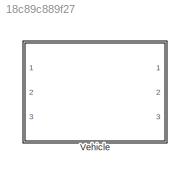
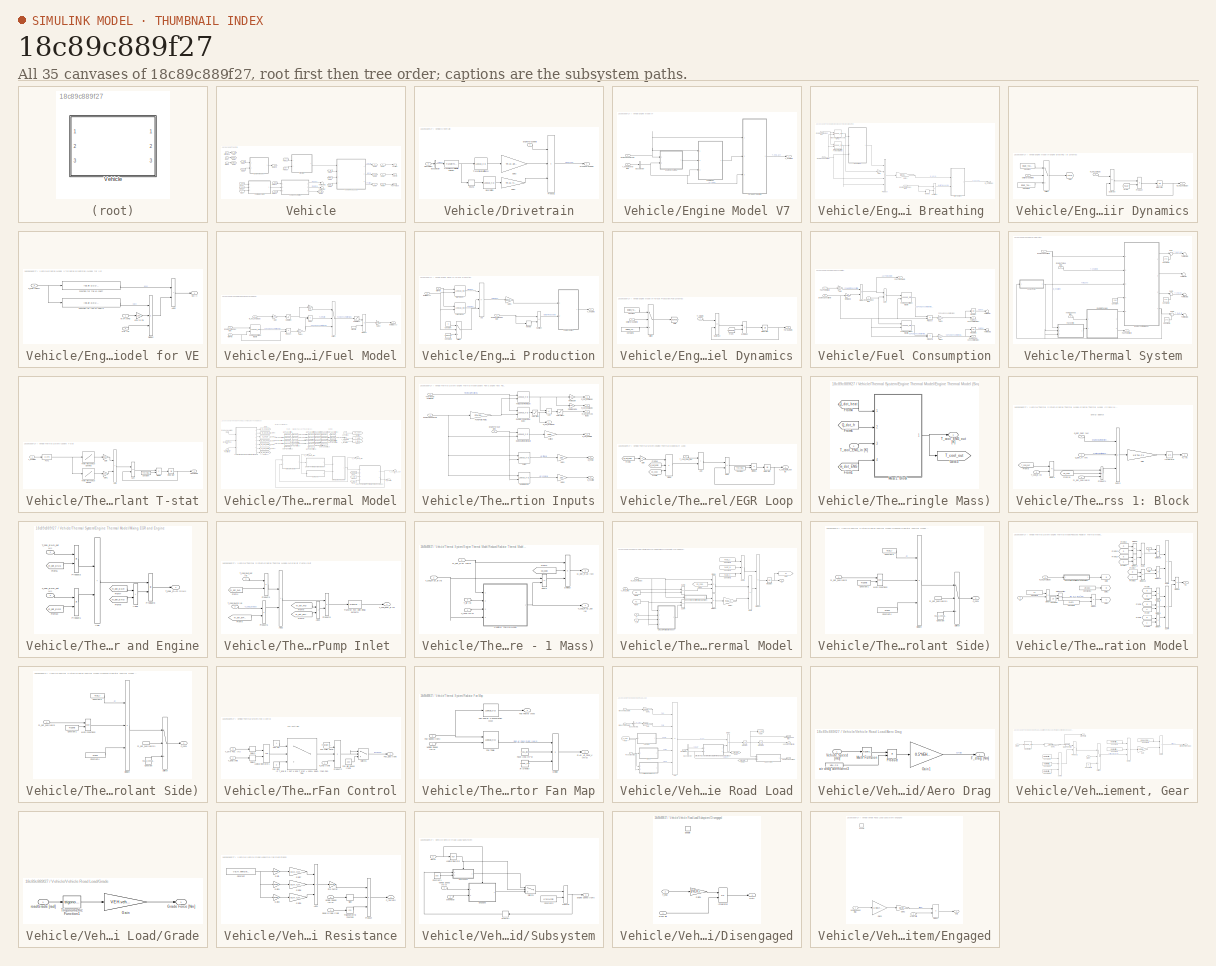
[diagram: thumbnail index - all 35 canvases of the model, root first then tree order]
MODEL slx_18c89c889f27
KIND library
CONFIG AbsTol = auto
CONFIG EnableMultiTasking = off
CONFIG FixedStep = auto
CONFIG MaxStep = auto
CONFIG MinStep = auto
CONFIG RelTol = 1e-3
CONFIG SampleTimeConstraint = Unconstrained
CONFIG Solver = VariableStepAuto
CONFIG SolverName = VariableStepAuto
CONFIG StartTime = 0.0
CONFIG StopTime = 10.0
BLOCK [SubSystem] Vehicle
  Ports = [3, 3]
  RequestExecContextInheritance = off
BLOCK [Inport] Vehicle/CtrlTorque
BLOCK [SubSystem] Vehicle/Drivetrain
  Ports = [2, 1]
  RequestExecContextInheritance = off
BLOCK [BusSelector] Vehicle/Drivetrain/Bus Selector
  OutputSignals = Gear
  Ports = [1, 1]
BLOCK [Inport] Vehicle/Drivetrain/EngineTorque [Nm]
BLOCK [Gain] Vehicle/Drivetrain/Gain2
  Gain = TRAN.finalDrive
BLOCK [Gain] Vehicle/Drivetrain/Gain3
  Gain = TRAN.gearEfficiency
BLOCK [Lookup_n-D] Vehicle/Drivetrain/Gear Ratios
  BreakpointsForDimension1 = [1:TRAN.numGears]
  ExtrapMethod = Clip
  InternalRulePriority = Speed
  NumberOfTableDimensions = 1
  Ports = [1, 1]
  RndMeth = Simplest
  Table = TRAN.gears
  UseLastTableValue = on
BLOCK [Inport] Vehicle/Drivetrain/Gear//Clutch
  Port = 2
BLOCK [Product] Vehicle/Drivetrain/Product1
  Inputs = 3
  Ports = [3, 1]
BLOCK [Rounding] Vehicle/Drivetrain/Round
  Operator = round
BLOCK [Reference] Vehicle/Drivetrain/Transfe Fcn (with initial outputs)  REF=simulink_extras/Additional
Linear/Transfer Fcn
(with initial outputs)
  Ports = [1, 1]
  SourceBlock = simulink_extras/Additional\nLinear/Transfer Fcn\n(with initial outputs)
  SourceProductBaseCode = SL
  SourceType = Transfer Function with Initial Outputs
BLOCK [Lookup_n-D] Vehicle/Drivetrain/Transmission Efficiency
  BreakpointsForDimension1 = [1:TRAN.numGears]
  ExtrapMethod = Clip
  InternalRulePriority = Speed
  NumberOfTableDimensions = 1
  Ports = [1, 1]
  RndMeth = Simplest
  Table = TRAN.transEfficiency
  UseLastTableValue = on
BLOCK [Outport] Vehicle/Drivetrain/Wheel Torque [Nm]
  VectorParamsAs1DForOutWhenUnconnected = off
BLOCK [SubSystem] Vehicle/Engine Model V7
  Ports = [2, 1]
  RequestExecContextInheritance = off
BLOCK [BusSelector] Vehicle/Engine Model V7/Bus Selector
  OutputSignals = T_eng
  Ports = [1, 1]
BLOCK [SubSystem] Vehicle/Engine Model V7/Engine Breathing 
  Ports = [2, 1]
  RequestExecContextInheritance = off
BLOCK [SubSystem] Vehicle/Engine Model V7/Engine Breathing /Air Dynamics
  Ports = [2, 1]
  RequestExecContextInheritance = off
BLOCK [Constant] Vehicle/Engine Model V7/Engine Breathing /Air Dynamics/Constant
  Value = ICE.air_Tau_p
BLOCK [Constant] Vehicle/Engine Model V7/Engine Breathing /Air Dynamics/Constant1
  Value = ICE.air_Tau_n
BLOCK [From] Vehicle/Engine Model V7/Engine Breathing /Air Dynamics/From
  GotoTag = TauAir
BLOCK [Goto] Vehicle/Engine Model V7/Engine Breathing /Air Dynamics/Goto
  GotoTag = TauAir
BLOCK [Integrator] Vehicle/Engine Model V7/Engine Breathing /Air Dynamics/Integrator
  InitialCondition = IC.mdot_eng
  Ports = [1, 1]
BLOCK [Product] Vehicle/Engine Model V7/Engine Breathing /Air Dynamics/Product
  Inputs = */
  Ports = [2, 1]
BLOCK [Sum] Vehicle/Engine Model V7/Engine Breathing /Air Dynamics/Subtract
  IconShape = rectangular
  Inputs = +-
  Ports = [2, 1]
BLOCK [Switch] Vehicle/Engine Model V7/Engine Breathing /Air Dynamics/Switch
  Criteria = u2 > Threshold
  InputSameDT = off
  SaturateOnIntegerOverflow = off
BLOCK [Inport] Vehicle/Engine Model V7/Engine Breathing /Air Dynamics/detla Torque [Nm]
  Port = 2
BLOCK [Inport] Vehicle/Engine Model V7/Engine Breathing /Air Dynamics/m_dot_SS [kg//s]
BLOCK [Outport] Vehicle/Engine Model V7/Engine Breathing /Air Dynamics/m_dot_eng [kg//s]
  VectorParamsAs1DForOutWhenUnconnected = off
BLOCK [Inport] Vehicle/Engine Model V7/Engine Breathing /Engine Speed [rpm]
BLOCK [Inport] Vehicle/Engine Model V7/Engine Breathing /Engine Torqe Des [Nm]
  Port = 2
BLOCK [InportShadow] Vehicle/Engine Model V7/Engine Breathing /Engine Torqe Des [Nm]1
  Port = 2
BLOCK [Gain] Vehicle/Engine Model V7/Engine Breathing /Gain
  Gain = 1e3
BLOCK [Gain] Vehicle/Engine Model V7/Engine Breathing /Gain1
  Gain = ICE.Vd/(120*ENV.R)
BLOCK [Lookup_n-D] Vehicle/Engine Model V7/Engine Breathing /Intake Manifold Pressure [kPa]
  BreakpointsForDimension1 = ICE.air.Torque
  BreakpointsForDimension2 = ICE.air.N
  InternalRulePriority = Speed
  Ports = [2, 1]
  RndMeth = Simplest
  Table = ICE.air.MAP
BLOCK [Lookup_n-D] Vehicle/Engine Model V7/Engine Breathing /Intake Manifold Temperature [K]
  BreakpointsForDimension1 = ICE.air.Torque
  BreakpointsForDimension2 = ICE.air.N
  InternalRulePriority = Speed
  Ports = [2, 1]
  RndMeth = Simplest
  Table = ICE.air.MAT
BLOCK [Memory] Vehicle/Engine Model V7/Engine Breathing /Memory
BLOCK [SubSystem] Vehicle/Engine Model V7/Engine Breathing /Model for VE
  Ports = [3, 1]
  RequestExecContextInheritance = off
BLOCK [Sum] Vehicle/Engine Model V7/Engine Breathing /Model for VE/Add2
  IconShape = rectangular
  Ports = [2, 1]
BLOCK [Product] Vehicle/Engine Model V7/Engine Breathing /Model for VE/Divide2
  Inputs = */*
  Ports = [3, 1]
BLOCK [Fcn] Vehicle/Engine Model V7/Engine Breathing /Model for VE/Function for the k1 coeff
  Expr = ICE.air.Q1(1)*u^ICE.air.Q1(2)+ICE.air.Q1(3)
BLOCK [Fcn] Vehicle/Engine Model V7/Engine Breathing /Model for VE/Function for the k1 coeff1
  Expr = ICE.air.Q2(1)*u^2+ICE.air.Q2(2)*u+ICE.air.Q2(3)
BLOCK [Inport] Vehicle/Engine Model V7/Engine Breathing /Model for VE/MAP [kPa]
BLOCK [Inport] Vehicle/Engine Model V7/Engine Breathing /Model for VE/N_eng [RPM]
  Port = 3
BLOCK [Inport] Vehicle/Engine Model V7/Engine Breathing /Model for VE/TIM [K]
  Port = 2
BLOCK [Outport] Vehicle/Engine Model V7/Engine Breathing /Model for VE/VE [-]
  VectorParamsAs1DForOutWhenUnconnected = off
BLOCK [Gain] Vehicle/Engine Model V7/Engine Breathing /Model for VE/kPa to Pa
  Gain = 1e3
BLOCK [Product] Vehicle/Engine Model V7/Engine Breathing /Product
  Inputs = ***/
  Ports = [4, 1]
BLOCK [Sum] Vehicle/Engine Model V7/Engine Breathing /Subtract
  IconShape = rectangular
  Inputs = +-
  Ports = [2, 1]
BLOCK [Outport] Vehicle/Engine Model V7/Engine Breathing /m_eng [kg//s]
  VectorParamsAs1DForOutWhenUnconnected = off
BLOCK [Inport] Vehicle/Engine Model V7/Engine Speed [rpm]
  Port = 2
BLOCK [SubSystem] Vehicle/Engine Model V7/Fuel Model
  Ports = [3, 1]
  RequestExecContextInheritance = off
BLOCK [Product] Vehicle/Engine Model V7/Fuel Model/Divide
  Inputs = /*
  Ports = [2, 1]
BLOCK [Product] Vehicle/Engine Model V7/Fuel Model/Divide1
  Inputs = */
  Ports = [2, 1]
BLOCK [Inport] Vehicle/Engine Model V7/Fuel Model/Engine Torqe Des [Nm]
  Port = 3
BLOCK [Lookup_n-D] Vehicle/Engine Model V7/Fuel Model/Fuel Consumtpion [mg//str]
  BreakpointsForDimension1 = ICE.FC.T
  BreakpointsForDimension2 = ICE.FC.N
  InternalRulePriority = Speed
  Ports = [2, 1]
  RndMeth = Simplest
  Table = ICE.FC.mdot_mgpstr
BLOCK [Gain] Vehicle/Engine Model V7/Fuel Model/Gain
  Gain = 1e3
BLOCK [Gain] Vehicle/Engine Model V7/Fuel Model/Gain1
  Gain = 1/ICE.AFRlim
BLOCK [Gain] Vehicle/Engine Model V7/Fuel Model/Gain2
  Gain = 2*60/ICE.zcyl*1e3
BLOCK [Gain] Vehicle/Engine Model V7/Fuel Model/Gain4
  Gain = ICE.zcyl/120000
BLOCK [Inport] Vehicle/Engine Model V7/Fuel Model/N [RPM]
BLOCK [InportShadow] Vehicle/Engine Model V7/Fuel Model/N [RPM]1
BLOCK [Product] Vehicle/Engine Model V7/Fuel Model/Product
  Ports = [2, 1]
BLOCK [Saturate] Vehicle/Engine Model V7/Fuel Model/Saturation
  LowerLimit = 0.001
  UpperLimit = inf
BLOCK [Saturate] Vehicle/Engine Model V7/Fuel Model/Saturation1
  LowerLimit = 0
  UpperLimit = inf
BLOCK [Switch] Vehicle/Engine Model V7/Fuel Model/Switch
  Criteria = u2 > Threshold
  InputSameDT = off
  SaturateOnIntegerOverflow = off
  Threshold = 1/ICE.AFRlim
BLOCK [Outport] Vehicle/Engine Model V7/Fuel Model/fuel [mg//cyc]
  VectorParamsAs1DForOutWhenUnconnected = off
BLOCK [Inport] Vehicle/Engine Model V7/Fuel Model/m_dot_eng [kg//s]
  Port = 2
BLOCK [Inport] Vehicle/Engine Model V7/T_end Desired [Nm]
BLOCK [Outport] Vehicle/Engine Model V7/T_eng [Nm]
  VectorParamsAs1DForOutWhenUnconnected = off
BLOCK [SubSystem] Vehicle/Engine Model V7/Torque Production
  Ports = [3, 1]
  RequestExecContextInheritance = off
BLOCK [Sum] Vehicle/Engine Model V7/Torque Production/Add
  IconShape = rectangular
  Inputs = +--
  Ports = [3, 1]
BLOCK [Constant] Vehicle/Engine Model V7/Torque Production/Constant
  Value = 0
BLOCK [Constant] Vehicle/Engine Model V7/Torque Production/Constant1
  Value = 40/ICE.Vd*(4*pi)
BLOCK [Inport] Vehicle/Engine Model V7/Torque Production/Engine Torqe Des [Nm]
  Port = 3
BLOCK [Lookup_n-D] Vehicle/Engine Model V7/Torque Production/FMEP Model
  BreakpointsForDimension1 = ICE.FMEP.RPM_vec
  BreakpointsForDimension2 = ICE.FMEP.fuel_vec
  InternalRulePriority = Speed
  Ports = [2, 1]
  RndMeth = Simplest
  Table = ICE.FMEP.FMEP_surf
BLOCK [SubSystem] Vehicle/Engine Model V7/Torque Production/Fuel Dynamics
  Ports = [2, 1]
  RequestExecContextInheritance = off
BLOCK [Constant] Vehicle/Engine Model V7/Torque Production/Fuel Dynamics/Constant
  Value = ICE.fuel_Tau_p
BLOCK [Constant] Vehicle/Engine Model V7/Torque Production/Fuel Dynamics/Constant1
  Value = ICE.fuel_Tau_n
BLOCK [From] Vehicle/Engine Model V7/Torque Production/Fuel Dynamics/From
  GotoTag = TauFuel
BLOCK [Goto] Vehicle/Engine Model V7/Torque Production/Fuel Dynamics/Goto
  GotoTag = TauFuel
BLOCK [Integrator] Vehicle/Engine Model V7/Torque Production/Fuel Dynamics/Integrator
  InitialCondition = IC.mdot_eng
  Ports = [1, 1]
BLOCK [Product] Vehicle/Engine Model V7/Torque Production/Fuel Dynamics/Product
  Inputs = */
  Ports = [2, 1]
BLOCK [Sum] Vehicle/Engine Model V7/Torque Production/Fuel Dynamics/Subtract
  IconShape = rectangular
  Inputs = +-
  Ports = [2, 1]
BLOCK [Switch] Vehicle/Engine Model V7/Torque Production/Fuel Dynamics/Switch
  Criteria = u2 > Threshold
  InputSameDT = off
  SaturateOnIntegerOverflow = off
BLOCK [Inport] Vehicle/Engine Model V7/Torque Production/Fuel Dynamics/T_SS [Nm]
BLOCK [Outport] Vehicle/Engine Model V7/Torque Production/Fuel Dynamics/Torque [Nm]
  VectorParamsAs1DForOutWhenUnconnected = off
BLOCK [Inport] Vehicle/Engine Model V7/Torque Production/Fuel Dynamics/detla Torque [Nm]
  Port = 2
BLOCK [Gain] Vehicle/Engine Model V7/Torque Production/Gain1
  Gain = ICE.Vd/(4*pi)
BLOCK [Lookup_n-D] Vehicle/Engine Model V7/Torque Production/IMEP Model
  BreakpointsForDimension1 = ICE.IMEP.N
  BreakpointsForDimension2 = ICE.IMEP.m_fuel
  InternalRulePriority = Speed
  Ports = [2, 1]
  RndMeth = Simplest
  Table = ICE.IMEP.IMEP'
  UseLastTableValue = on
BLOCK [Memory] Vehicle/Engine Model V7/Torque Production/Memory
BLOCK [Inport] Vehicle/Engine Model V7/Torque Production/N [RPM]
BLOCK [Sum] Vehicle/Engine Model V7/Torque Production/Subtract
  IconShape = rectangular
  Inputs = +-
  Ports = [2, 1]
BLOCK [Switch] Vehicle/Engine Model V7/Torque Production/Switch
  Criteria = u2 > Threshold
  InputSameDT = off
  SaturateOnIntegerOverflow = off
BLOCK [Outport] Vehicle/Engine Model V7/Torque Production/T_eng [Nm]
  VectorParamsAs1DForOutWhenUnconnected = off
BLOCK [Inport] Vehicle/Engine Model V7/Torque Production/fuel [mg//cyc]
  Port = 2
BLOCK [Outport] Vehicle/FanTorque
  Port = 3
BLOCK [From] Vehicle/From
  GotoTag = V
BLOCK [From] Vehicle/From1
  GotoTag = T_ctrl
BLOCK [From] Vehicle/From10
  GotoTag = N_eng
BLOCK [From] Vehicle/From11
  GotoTag = N_eng
BLOCK [From] Vehicle/From12
  GotoTag = T_eng
BLOCK [From] Vehicle/From13
  GotoTag = T_eng
BLOCK [From] Vehicle/From14
  GotoTag = T_eng
BLOCK [From] Vehicle/From2
  GotoTag = V
BLOCK [From] Vehicle/From20
  GotoTag = gear
BLOCK [From] Vehicle/From3
  GotoTag = gear
BLOCK [From] Vehicle/From4
  GotoTag = T_ctrl
BLOCK [From] Vehicle/From6
  GotoTag = Grade
BLOCK [From] Vehicle/From7
  GotoTag = X
BLOCK [From] Vehicle/From8
  GotoTag = T_fan
BLOCK [From] Vehicle/From9
  GotoTag = N_eng
BLOCK [SubSystem] Vehicle/Fuel Consumption
  Ports = [3, 3]
  RequestExecContextInheritance = off
BLOCK [Inport] Vehicle/Fuel Consumption/ Fan Power [kW]
  Port = 2
BLOCK [Product] Vehicle/Fuel Consumption/Divide
  Inputs = */
  Ports = [2, 1]
BLOCK [Outport] Vehicle/Fuel Consumption/Engine Fuel Consumption [g//s]
  Port = 2
  VectorParamsAs1DForOutWhenUnconnected = off
BLOCK [Inport] Vehicle/Fuel Consumption/Engine Speed [rpm]
  Port = 3
BLOCK [Inport] Vehicle/Fuel Consumption/Engine Torque [Nm]
BLOCK [Outport] Vehicle/Fuel Consumption/Fan Torque [Nm]
  Port = 3
  VectorParamsAs1DForOutWhenUnconnected = off
BLOCK [Lookup_n-D] Vehicle/Fuel Consumption/Fuel Consumtpion [mg//str]
  BreakpointsForDimension1 = ICE.FC.T
  BreakpointsForDimension2 = ICE.FC.N
  InternalRulePriority = Speed
  Ports = [2, 1]
  RndMeth = Simplest
  Table = ICE.FC.mdot_mgpstr
BLOCK [Lookup_n-D] Vehicle/Fuel Consumption/Fuel Consumtpion [mg//str]1
  BreakpointsForDimension1 = ICE.FC.T
  BreakpointsForDimension2 = ICE.FC.N
  InternalRulePriority = Speed
  Ports = [2, 1]
  RndMeth = Simplest
  Table = ICE.FC.mdot_mgpstr
BLOCK [Gain] Vehicle/Fuel Consumption/Gain
  Gain = 1e3/FAN.eta
BLOCK [Gain] Vehicle/Fuel Consumption/Gain1
  Gain = ICE.zcyl/120000
BLOCK [Gain] Vehicle/Fuel Consumption/Gain4
  Gain = ICE.zcyl/120000
BLOCK [Integrator] Vehicle/Fuel Consumption/Integrator
  Ports = [1, 1]
BLOCK [Integrator] Vehicle/Fuel Consumption/Integrator1
  Ports = [1, 1]
BLOCK [Product] Vehicle/Fuel Consumption/Product
  Ports = [2, 1]
BLOCK [Product] Vehicle/Fuel Consumption/Product1
  Ports = [2, 1]
BLOCK [Sum] Vehicle/Fuel Consumption/Sum
  IconShape = rectangular
  Ports = [2, 1]
BLOCK [Terminator] Vehicle/Fuel Consumption/Terminator
BLOCK [Terminator] Vehicle/Fuel Consumption/Terminator1
BLOCK [Outport] Vehicle/Fuel Consumption/Total Fuel Consumption [g//s]
  VectorParamsAs1DForOutWhenUnconnected = off
BLOCK [Gain] Vehicle/Fuel Consumption/rpm to rad//s
  Gain = pi/30
BLOCK [Inport] Vehicle/Gear
  Port = 2
BLOCK [Goto] Vehicle/Goto
  GotoTag = T_ctrl
BLOCK [Goto] Vehicle/Goto1
  GotoTag = gear
BLOCK [Goto] Vehicle/Goto10
  GotoTag = T_eng
BLOCK [Goto] Vehicle/Goto2
  GotoTag = Grade
BLOCK [Goto] Vehicle/Goto3
  GotoTag = T_fan
BLOCK [Goto] Vehicle/Goto4
  GotoTag = X
BLOCK [Goto] Vehicle/Goto6
  GotoTag = V
BLOCK [Goto] Vehicle/Goto9
  GotoTag = N_eng
BLOCK [Inport] Vehicle/Grade
  Port = 3
BLOCK [Outport] Vehicle/Position
BLOCK [Terminator] Vehicle/Terminator
BLOCK [Terminator] Vehicle/Terminator1
BLOCK [SubSystem] Vehicle/Thermal System
  Ports = [3, 1]
  RequestExecContextInheritance = off
BLOCK [Outport] Vehicle/Thermal System/ Fan Power [kW]
  VectorParamsAs1DForOutWhenUnconnected = off
BLOCK [Constant] Vehicle/Thermal System/Constant
  Value = 298
BLOCK [Constant] Vehicle/Thermal System/Constant1
  Value = 273
BLOCK [Constant] Vehicle/Thermal System/Constant2
  Value = 273
BLOCK [Constant] Vehicle/Thermal System/Constant3
  Value = 273
BLOCK [SubSystem] Vehicle/Thermal System/Coolant T-stat
  Ports = [1, 1]
  RequestExecContextInheritance = off
BLOCK [Sum] Vehicle/Thermal System/Coolant T-stat/Add
  IconShape = rectangular
  Ports = [2, 1]
BLOCK [Constant] Vehicle/Thermal System/Coolant T-stat/Constant
  Value = TSTAT.tau
BLOCK [Product] Vehicle/Thermal System/Coolant T-stat/Divide
  Inputs = */
  Ports = [2, 1]
BLOCK [Fcn] Vehicle/Thermal System/Coolant T-stat/Fcn1
  Expr = u-273
BLOCK [Gain] Vehicle/Thermal System/Coolant T-stat/Gain
  Gain = 0.85
BLOCK [Gain] Vehicle/Thermal System/Coolant T-stat/Gain1
  Gain = 0.15
BLOCK [Integrator] Vehicle/Thermal System/Coolant T-stat/Integrator
  InitialCondition = TSTAT.IC
  Ports = [1, 1]
BLOCK [Outport] Vehicle/Thermal System/Coolant T-stat/Opening [%]
  VectorParamsAs1DForOutWhenUnconnected = off
BLOCK [Sum] Vehicle/Thermal System/Coolant T-stat/Sum
  IconShape = rectangular
  Inputs = +-
  Ports = [2, 1]
BLOCK [Inport] Vehicle/Thermal System/Coolant T-stat/T_RAD in  [K]
BLOCK [Lookup] Vehicle/Thermal System/Coolant T-stat/Temp - Mechanical Closing
  InputValues = TSTAT.mclosing(:,1)
  LookUpMeth = Interpolation-Use End Values
  SaturateOnIntegerOverflow = off
  Table = TSTAT.mclosing(:,2)
BLOCK [Lookup] Vehicle/Thermal System/Coolant T-stat/Temp - Mechanical Opening
  InputValues = TSTAT.mopening(:,1)
  LookUpMeth = Interpolation-Use End Values
  SaturateOnIntegerOverflow = off
  Table = TSTAT.mopening(:,2)
BLOCK [Inport] Vehicle/Thermal System/Engine Speed [rpm]
  Port = 2
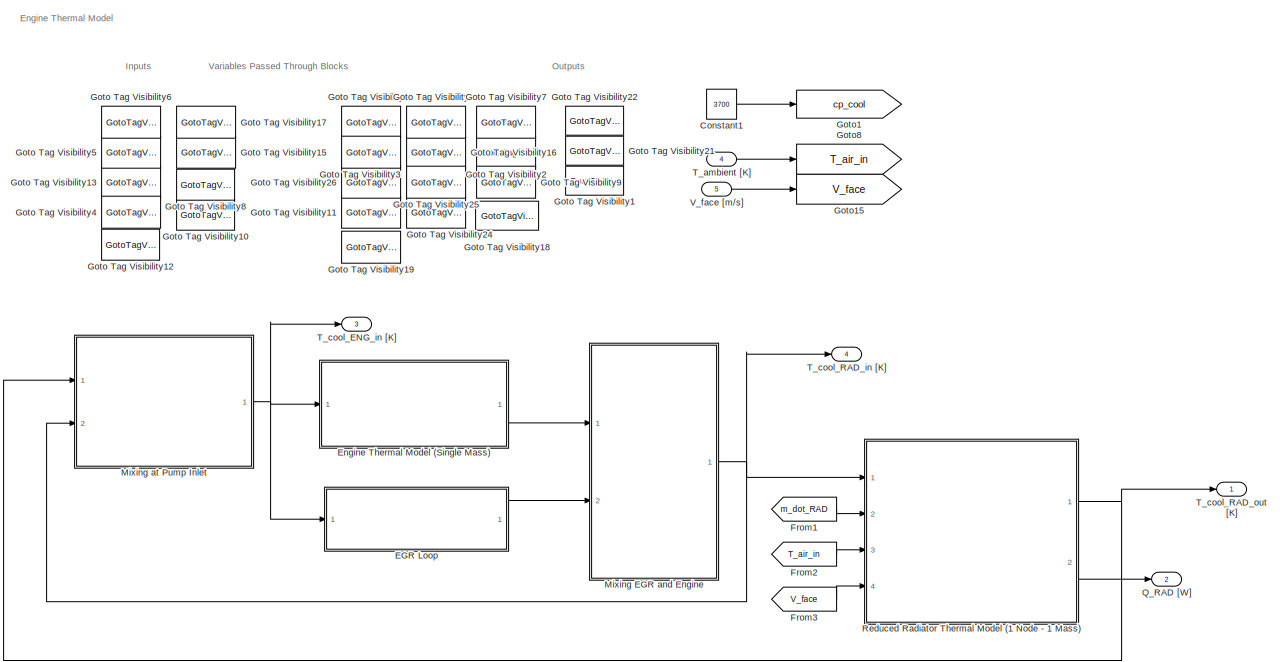
[diagram: Vehicle/Thermal System/Engine Thermal Model - part 1/2, center side, full height]
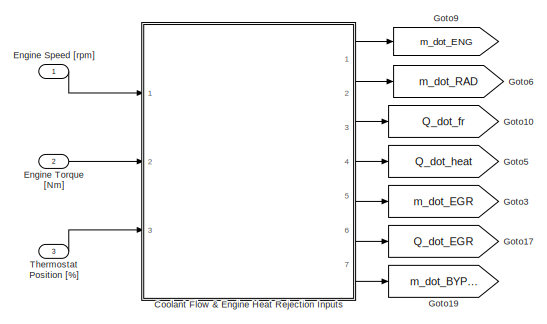
[diagram: Vehicle/Thermal System/Engine Thermal Model - part 2/2, top left region]
BLOCK [SubSystem] Vehicle/Thermal System/Engine Thermal Model
  Ports = [5, 4]
  RequestExecContextInheritance = off
BLOCK [Constant] Vehicle/Thermal System/Engine Thermal Model/Constant1
  Value = 3700
BLOCK [SubSystem] Vehicle/Thermal System/Engine Thermal Model/Coolant Flow & Engine Heat Rejection Inputs
  Ports = [3, 7]
  RequestExecContextInheritance = off
BLOCK [Sum] Vehicle/Thermal System/Engine Thermal Model/Coolant Flow & Engine Heat Rejection Inputs/Add
  IconShape = rectangular
  Inputs = +-
  Ports = [2, 1]
BLOCK [Lookup_n-D] Vehicle/Thermal System/Engine Thermal Model/Coolant Flow & Engine Heat Rejection Inputs/EGR Heat Rejection [kW]
  BreakpointsForDimension1 = EGR.Tau_Eng
  BreakpointsForDimension2 = EGR.Omega_Eng
  ExtrapMethod = Clip
  InternalRulePriority = Speed
  Ports = [2, 1]
  RndMeth = Simplest
  Table = EGR.table_Heat_Transfered
BLOCK [Inport] Vehicle/Thermal System/Engine Thermal Model/Coolant Flow & Engine Heat Rejection Inputs/Engine Speed [rpm]
BLOCK [Inport] Vehicle/Thermal System/Engine Thermal Model/Coolant Flow & Engine Heat Rejection Inputs/Engine Torque [Nm]
  Port = 2
BLOCK [Lookup_n-D] Vehicle/Thermal System/Engine Thermal Model/Coolant Flow & Engine Heat Rejection Inputs/FMEP
  BreakpointsForDimension1 = ENG.N
  BreakpointsForDimension2 = ENG.T
  ExtrapMethod = Clip
  Ports = [2, 1]
  RndMeth = Simplest
  Table = ENG.FMEP
BLOCK [Gain] Vehicle/Thermal System/Engine Thermal Model/Coolant Flow & Engine Heat Rejection Inputs/Flow to EGR
  Gain = 0.13
BLOCK [Gain] Vehicle/Thermal System/Engine Thermal Model/Coolant Flow & Engine Heat Rejection Inputs/Flow to Engine
  Gain = 0.87
BLOCK [Gain] Vehicle/Thermal System/Engine Thermal Model/Coolant Flow & Engine Heat Rejection Inputs/Gain1
  Gain = 1e3
BLOCK [Gain] Vehicle/Thermal System/Engine Thermal Model/Coolant Flow & Engine Heat Rejection Inputs/Gain6
  Gain = 1e3
BLOCK [Lookup_n-D] Vehicle/Thermal System/Engine Thermal Model/Coolant Flow & Engine Heat Rejection Inputs/Heat Rejected
  BreakpointsForDimension1 = ENG.N
  BreakpointsForDimension2 = ENG.T
  ExtrapMethod = Clip
  Ports = [2, 1]
  RndMeth = Simplest
  Table = ENG.HR
BLOCK [Gain] Vehicle/Thermal System/Engine Thermal Model/Coolant Flow & Engine Heat Rejection Inputs/Pump Pulley Ratio1
  Gain = CFN.pulley_ratio
BLOCK [Outport] Vehicle/Thermal System/Engine Thermal Model/Coolant Flow & Engine Heat Rejection Inputs/Q_dot_EGR [W]
  Port = 6
  VectorParamsAs1DForOutWhenUnconnected = off
BLOCK [Outport] Vehicle/Thermal System/Engine Thermal Model/Coolant Flow & Engine Heat Rejection Inputs/Q_fric [W]
  Port = 3
  VectorParamsAs1DForOutWhenUnconnected = off
BLOCK [Outport] Vehicle/Thermal System/Engine Thermal Model/Coolant Flow & Engine Heat Rejection Inputs/Q_heat [W]
  Port = 4
  VectorParamsAs1DForOutWhenUnconnected = off
BLOCK [Lookup_n-D] Vehicle/Thermal System/Engine Thermal Model/Coolant Flow & Engine Heat Rejection Inputs/Radiator Coolant Flow [kg//s]
  BreakpointsForDimension1 = CFN.table_ITW_pos
  BreakpointsForDimension2 = CFN.table_pump_speed
  ExtrapMethod = Clip
  InternalRulePriority = Speed
  Ports = [2, 1]
  RndMeth = Simplest
  Table = CFN.table_RAD_flow_rates
BLOCK [Saturate] Vehicle/Thermal System/Engine Thermal Model/Coolant Flow & Engine Heat Rejection Inputs/Saturation
  LowerLimit = 0
  UpperLimit = inf
  ZeroCross = off
BLOCK [Saturate] Vehicle/Thermal System/Engine Thermal Model/Coolant Flow & Engine Heat Rejection Inputs/Saturation1
  LowerLimit = 0
  UpperLimit = inf
  ZeroCross = off
BLOCK [Inport] Vehicle/Thermal System/Engine Thermal Model/Coolant Flow & Engine Heat Rejection Inputs/Thermostat Position [%]
  Port = 3
BLOCK [Lookup_n-D] Vehicle/Thermal System/Engine Thermal Model/Coolant Flow & Engine Heat Rejection Inputs/Total Coolant Flow [kg//s]
  BreakpointsForDimension1 = CFN.table_ITW_pos
  BreakpointsForDimension2 = CFN.table_pump_speed
  ExtrapMethod = Clip
  InternalRulePriority = Speed
  Ports = [2, 1]
  RndMeth = Simplest
  Table = CFN.table_TOT_flow_rates
BLOCK [Gain] Vehicle/Thermal System/Engine Thermal Model/Coolant Flow & Engine Heat Rejection Inputs/kW to W
  Gain = 1000
BLOCK [Outport] Vehicle/Thermal System/Engine Thermal Model/Coolant Flow & Engine Heat Rejection Inputs/m_dot_BYPASS [kg//s]
  Port = 7
  VectorParamsAs1DForOutWhenUnconnected = off
BLOCK [Outport] Vehicle/Thermal System/Engine Thermal Model/Coolant Flow & Engine Heat Rejection Inputs/m_dot_EGR [kg//s]
  Port = 5
  VectorParamsAs1DForOutWhenUnconnected = off
BLOCK [Outport] Vehicle/Thermal System/Engine Thermal Model/Coolant Flow & Engine Heat Rejection Inputs/m_dot_ENG [kg//s]
  VectorParamsAs1DForOutWhenUnconnected = off
BLOCK [Outport] Vehicle/Thermal System/Engine Thermal Model/Coolant Flow & Engine Heat Rejection Inputs/m_dot_RAD[kg//s]
  Port = 2
  VectorParamsAs1DForOutWhenUnconnected = off
BLOCK [SubSystem] Vehicle/Thermal System/Engine Thermal Model/EGR Loop
  Ports = [1, 1]
  RequestExecContextInheritance = off
BLOCK [Sum] Vehicle/Thermal System/Engine Thermal Model/EGR Loop/Add
  IconShape = rectangular
  Ports = [2, 1]
BLOCK [Constant] Vehicle/Thermal System/Engine Thermal Model/EGR Loop/Constant
  Value = TSTAT.tau
  VectorParams1D = off
BLOCK [Product] Vehicle/Thermal System/Engine Thermal Model/EGR Loop/Divide
  Inputs = *//
  Ports = [3, 1]
BLOCK [Product] Vehicle/Thermal System/Engine Thermal Model/EGR Loop/Divide1
  Inputs = */
  Ports = [2, 1]
BLOCK [From] Vehicle/Thermal System/Engine Thermal Model/EGR Loop/From10
  GotoTag = m_dot_EGR
  TagVisibility = global
BLOCK [From] Vehicle/Thermal System/Engine Thermal Model/EGR Loop/From8
  GotoTag = Q_dot_EGR
  TagVisibility = scoped
BLOCK [From] Vehicle/Thermal System/Engine Thermal Model/EGR Loop/From9
  GotoTag = cp_cool
  TagVisibility = global
BLOCK [Gain] Vehicle/Thermal System/Engine Thermal Model/EGR Loop/Gain
  Gain = 2
BLOCK [Integrator] Vehicle/Thermal System/Engine Thermal Model/EGR Loop/Integrator
  InitialCondition = ETM.T_init
  Ports = [1, 1]
BLOCK [Sum] Vehicle/Thermal System/Engine Thermal Model/EGR Loop/Sum
  IconShape = rectangular
  Inputs = +-
  Ports = [2, 1]
BLOCK [Outport] Vehicle/Thermal System/Engine Thermal Model/EGR Loop/T_cool_EGR_out [K]
  VectorParamsAs1DForOutWhenUnconnected = off
BLOCK [Inport] Vehicle/Thermal System/Engine Thermal Model/EGR Loop/T_cool_ENG_in [K]
BLOCK [Inport] Vehicle/Thermal System/Engine Thermal Model/Engine Speed [rpm]
BLOCK [SubSystem] Vehicle/Thermal System/Engine Thermal Model/Engine Thermal Model (Single Mass)
  Ports = [1, 1]
  RequestExecContextInheritance = off
BLOCK [From] Vehicle/Thermal System/Engine Thermal Model/Engine Thermal Model (Single Mass)/From1
  GotoTag = m_dot_ENG
  TagVisibility = global
BLOCK [From] Vehicle/Thermal System/Engine Thermal Model/Engine Thermal Model (Single Mass)/From4
  GotoTag = Q_dot_heat
  TagVisibility = scoped
BLOCK [From] Vehicle/Thermal System/Engine Thermal Model/Engine Thermal Model (Single Mass)/From6
  GotoTag = Q_dot_fr
  TagVisibility = scoped
BLOCK [Goto] Vehicle/Thermal System/Engine Thermal Model/Engine Thermal Model (Single Mass)/Goto3
  GotoTag = T_cool_out
  TagVisibility = scoped
BLOCK [SubSystem] Vehicle/Thermal System/Engine Thermal Model/Engine Thermal Model (Single Mass)/Mass 1: Block
  Ports = [4, 1]
  RequestExecContextInheritance = off
BLOCK [From] Vehicle/Thermal System/Engine Thermal Model/Engine Thermal Model (Single Mass)/Mass 1: Block/From10
  GotoTag = cp_cool
  TagVisibility = global
BLOCK [From] Vehicle/Thermal System/Engine Thermal Model/Engine Thermal Model (Single Mass)/Mass 1: Block/From8
  GotoTag = T_cool_out
  TagVisibility = scoped
BLOCK [Gain] Vehicle/Thermal System/Engine Thermal Model/Engine Thermal Model (Single Mass)/Mass 1: Block/Gain
  Gain = 1/ETM.C1
BLOCK [Integrator] Vehicle/Thermal System/Engine Thermal Model/Engine Thermal Model (Single Mass)/Mass 1: Block/Integrator
  InitialCondition = ETM.T_init
  Ports = [1, 1]
BLOCK [Product] Vehicle/Thermal System/Engine Thermal Model/Engine Thermal Model (Single Mass)/Mass 1: Block/Product1
  Inputs = 3
  Ports = [3, 1]
BLOCK [Inport] Vehicle/Thermal System/Engine Thermal Model/Engine Thermal Model (Single Mass)/Mass 1: Block/Q_dot_fr [W]
  Port = 2
BLOCK [Inport] Vehicle/Thermal System/Engine Thermal Model/Engine Thermal Model (Single Mass)/Mass 1: Block/Q_dot_heat [W]
BLOCK [Sum] Vehicle/Thermal System/Engine Thermal Model/Engine Thermal Model (Single Mass)/Mass 1: Block/Sum3
  IconShape = rectangular
  Inputs = ++-
  Ports = [3, 1]
BLOCK [Sum] Vehicle/Thermal System/Engine Thermal Model/Engine Thermal Model (Single Mass)/Mass 1: Block/Sum4
  IconShape = rectangular
  Inputs = +-
  Ports = [2, 1]
BLOCK [Outport] Vehicle/Thermal System/Engine Thermal Model/Engine Thermal Model (Single Mass)/Mass 1: Block/T1 [K]
  VectorParamsAs1DForOutWhenUnconnected = off
BLOCK [Inport] Vehicle/Thermal System/Engine Thermal Model/Engine Thermal Model (Single Mass)/Mass 1: Block/T_cool_in [K]
  Port = 3
BLOCK [Inport] Vehicle/Thermal System/Engine Thermal Model/Engine Thermal Model (Single Mass)/Mass 1: Block/m_dot_cool [kg//s]
  Port = 4
BLOCK [Inport] Vehicle/Thermal System/Engine Thermal Model/Engine Thermal Model (Single Mass)/T_cool_ENG_in [K]
BLOCK [Outport] Vehicle/Thermal System/Engine Thermal Model/Engine Thermal Model (Single Mass)/T_cool_ENG_out [K]
  VectorParamsAs1DForOutWhenUnconnected = off
BLOCK [Inport] Vehicle/Thermal System/Engine Thermal Model/Engine Torque [Nm]
  Port = 2
BLOCK [From] Vehicle/Thermal System/Engine Thermal Model/From1
  GotoTag = m_dot_RAD
  TagVisibility = scoped
BLOCK [From] Vehicle/Thermal System/Engine Thermal Model/From2
  GotoTag = T_air_in
  TagVisibility = scoped
BLOCK [From] Vehicle/Thermal System/Engine Thermal Model/From3
  GotoTag = V_face
  TagVisibility = scoped
BLOCK [GotoTagVisibility] Vehicle/Thermal System/Engine Thermal Model/Goto Tag Visibility1
  GotoTag = T2
BLOCK [GotoTagVisibility] Vehicle/Thermal System/Engine Thermal Model/Goto Tag Visibility10
  GotoTag = Q_dot_fr
BLOCK [GotoTagVisibility] Vehicle/Thermal System/Engine Thermal Model/Goto Tag Visibility11
  GotoTag = m_dot_EGR
BLOCK [GotoTagVisibility] Vehicle/Thermal System/Engine Thermal Model/Goto Tag Visibility12
  GotoTag = Q_dot_EGR
BLOCK [GotoTagVisibility] Vehicle/Thermal System/Engine Thermal Model/Goto Tag Visibility13
  GotoTag = T_oil_in
BLOCK [GotoTagVisibility] Vehicle/Thermal System/Engine Thermal Model/Goto Tag Visibility14
  GotoTag = m_dot_ENG
BLOCK [GotoTagVisibility] Vehicle/Thermal System/Engine Thermal Model/Goto Tag Visibility15
  GotoTag = q_oil_EOC
BLOCK [GotoTagVisibility] Vehicle/Thermal System/Engine Thermal Model/Goto Tag Visibility16
  GotoTag = cp_cool
BLOCK [GotoTagVisibility] Vehicle/Thermal System/Engine Thermal Model/Goto Tag Visibility17
  GotoTag = q_cool_ENG
BLOCK [GotoTagVisibility] Vehicle/Thermal System/Engine Thermal Model/Goto Tag Visibility18
  GotoTag = T_cool_ENG_out
BLOCK [GotoTagVisibility] Vehicle/Thermal System/Engine Thermal Model/Goto Tag Visibility19
  GotoTag = m_dot_BYPASS
BLOCK [GotoTagVisibility] Vehicle/Thermal System/Engine Thermal Model/Goto Tag Visibility2
  GotoTag = k_cool
BLOCK [GotoTagVisibility] Vehicle/Thermal System/Engine Thermal Model/Goto Tag Visibility21
  GotoTag = T_cool_out
BLOCK [GotoTagVisibility] Vehicle/Thermal System/Engine Thermal Model/Goto Tag Visibility22
  GotoTag = T_oil_out
BLOCK [GotoTagVisibility] Vehicle/Thermal System/Engine Thermal Model/Goto Tag Visibility23
  GotoTag = rho_cool
BLOCK [GotoTagVisibility] Vehicle/Thermal System/Engine Thermal Model/Goto Tag Visibility24
  GotoTag = cp_oil
BLOCK [GotoTagVisibility] Vehicle/Thermal System/Engine Thermal Model/Goto Tag Visibility25
  GotoTag = rho_oil
BLOCK [GotoTagVisibility] Vehicle/Thermal System/Engine Thermal Model/Goto Tag Visibility26
  GotoTag = m_dot_oil
BLOCK [GotoTagVisibility] Vehicle/Thermal System/Engine Thermal Model/Goto Tag Visibility3
  GotoTag = m_dot_RAD
BLOCK [GotoTagVisibility] Vehicle/Thermal System/Engine Thermal Model/Goto Tag Visibility4
  GotoTag = V_face
BLOCK [GotoTagVisibility] Vehicle/Thermal System/Engine Thermal Model/Goto Tag Visibility5
  GotoTag = T_cool_in
BLOCK [GotoTagVisibility] Vehicle/Thermal System/Engine Thermal Model/Goto Tag Visibility6
  GotoTag = T_air_in
BLOCK [GotoTagVisibility] Vehicle/Thermal System/Engine Thermal Model/Goto Tag Visibility7
  GotoTag = mu_cool
BLOCK [GotoTagVisibility] Vehicle/Thermal System/Engine Thermal Model/Goto Tag Visibility8
  GotoTag = Q_dot_heat
BLOCK [GotoTagVisibility] Vehicle/Thermal System/Engine Thermal Model/Goto Tag Visibility9
  GotoTag = Pr_cool
BLOCK [Goto] Vehicle/Thermal System/Engine Thermal Model/Goto1
  GotoTag = cp_cool
  TagVisibility = global
BLOCK [Goto] Vehicle/Thermal System/Engine Thermal Model/Goto10
  GotoTag = Q_dot_fr
  TagVisibility = scoped
BLOCK [Goto] Vehicle/Thermal System/Engine Thermal Model/Goto15
  GotoTag = V_face
  TagVisibility = scoped
BLOCK [Goto] Vehicle/Thermal System/Engine Thermal Model/Goto17
  GotoTag = Q_dot_EGR
  TagVisibility = scoped
BLOCK [Goto] Vehicle/Thermal System/Engine Thermal Model/Goto19
  GotoTag = m_dot_BYPASS
  TagVisibility = scoped
BLOCK [Goto] Vehicle/Thermal System/Engine Thermal Model/Goto3
  GotoTag = m_dot_EGR
  TagVisibility = global
BLOCK [Goto] Vehicle/Thermal System/Engine Thermal Model/Goto5
  GotoTag = Q_dot_heat
  TagVisibility = scoped
BLOCK [Goto] Vehicle/Thermal System/Engine Thermal Model/Goto6
  GotoTag = m_dot_RAD
  TagVisibility = scoped
BLOCK [Goto] Vehicle/Thermal System/Engine Thermal Model/Goto8
  GotoTag = T_air_in
  TagVisibility = scoped
BLOCK [Goto] Vehicle/Thermal System/Engine Thermal Model/Goto9
  GotoTag = m_dot_ENG
  TagVisibility = global
BLOCK [SubSystem] Vehicle/Thermal System/Engine Thermal Model/Mixing EGR and Engine
  Ports = [2, 1]
  RequestExecContextInheritance = off
BLOCK [Sum] Vehicle/Thermal System/Engine Thermal Model/Mixing EGR and Engine/Add
  IconShape = rectangular
  Ports = [2, 1]
BLOCK [Sum] Vehicle/Thermal System/Engine Thermal Model/Mixing EGR and Engine/Add1
  IconShape = rectangular
  Ports = [2, 1]
BLOCK [From] Vehicle/Thermal System/Engine Thermal Model/Mixing EGR and Engine/From10
  GotoTag = m_dot_EGR
  TagVisibility = global
BLOCK [From] Vehicle/Thermal System/Engine Thermal Model/Mixing EGR and Engine/From6
  GotoTag = m_dot_ENG
  TagVisibility = global
BLOCK [From] Vehicle/Thermal System/Engine Thermal Model/Mixing EGR and Engine/From7
  GotoTag = m_dot_EGR
  TagVisibility = global
BLOCK [From] Vehicle/Thermal System/Engine Thermal Model/Mixing EGR and Engine/From8
  GotoTag = m_dot_ENG
  TagVisibility = global
BLOCK [Product] Vehicle/Thermal System/Engine Thermal Model/Mixing EGR and Engine/Product1
  Ports = [2, 1]
BLOCK [Product] Vehicle/Thermal System/Engine Thermal Model/Mixing EGR and Engine/Product2
  Ports = [2, 1]
BLOCK [Product] Vehicle/Thermal System/Engine Thermal Model/Mixing EGR and Engine/Product3
  Inputs = */
  Ports = [2, 1]
BLOCK [Inport] Vehicle/Thermal System/Engine Thermal Model/Mixing EGR and Engine/T_cool_EGR_out [K]
  Port = 2
BLOCK [Inport] Vehicle/Thermal System/Engine Thermal Model/Mixing EGR and Engine/T_cool_ENG_out [K]
BLOCK [Outport] Vehicle/Thermal System/Engine Thermal Model/Mixing EGR and Engine/T_cool_RAD in [K]
  VectorParamsAs1DForOutWhenUnconnected = off
BLOCK [SubSystem] Vehicle/Thermal System/Engine Thermal Model/Mixing at Pump Inlet 
  Ports = [2, 1]
  RequestExecContextInheritance = off
BLOCK [Sum] Vehicle/Thermal System/Engine Thermal Model/Mixing at Pump Inlet /Add2
  IconShape = rectangular
  Ports = [2, 1]
BLOCK [Sum] Vehicle/Thermal System/Engine Thermal Model/Mixing at Pump Inlet /Add3
  IconShape = rectangular
  Ports = [2, 1]
BLOCK [From] Vehicle/Thermal System/Engine Thermal Model/Mixing at Pump Inlet /From4
  GotoTag = m_dot_RAD
  TagVisibility = scoped
BLOCK [From] Vehicle/Thermal System/Engine Thermal Model/Mixing at Pump Inlet /From5
  GotoTag = m_dot_BYPASS
  TagVisibility = scoped
BLOCK [From] Vehicle/Thermal System/Engine Thermal Model/Mixing at Pump Inlet /From6
  GotoTag = m_dot_RAD
  TagVisibility = scoped
BLOCK [From] Vehicle/Thermal System/Engine Thermal Model/Mixing at Pump Inlet /From9
  GotoTag = m_dot_BYPASS
  TagVisibility = scoped
BLOCK [Product] Vehicle/Thermal System/Engine Thermal Model/Mixing at Pump Inlet /Product4
  Ports = [2, 1]
BLOCK [Product] Vehicle/Thermal System/Engine Thermal Model/Mixing at Pump Inlet /Product5
  Ports = [2, 1]
BLOCK [Product] Vehicle/Thermal System/Engine Thermal Model/Mixing at Pump Inlet /Product6
  Inputs = */
  Ports = [2, 1]
BLOCK [Outport] Vehicle/Thermal System/Engine Thermal Model/Mixing at Pump Inlet /T_cool_ENG_in [K]
  VectorParamsAs1DForOutWhenUnconnected = off
BLOCK [Inport] Vehicle/Thermal System/Engine Thermal Model/Mixing at Pump Inlet /T_cool_RAD_in [K]
  Port = 2
BLOCK [Inport] Vehicle/Thermal System/Engine Thermal Model/Mixing at Pump Inlet /T_cool_RAD_out [K]
BLOCK [Reference] Vehicle/Thermal System/Engine Thermal Model/Mixing at Pump Inlet /Transfer Fcn (with initial outputs)  REF=simulink_extras/Additional
Linear/Transfer Fcn
(with initial outputs)
  Ports = [1, 1]
  SourceBlock = simulink_extras/Additional\nLinear/Transfer Fcn\n(with initial outputs)
  SourceProductBaseCode = SL
  SourceType = Transfer Function with Initial Outputs
BLOCK [Outport] Vehicle/Thermal System/Engine Thermal Model/Q_RAD [W]
  Port = 2
  VectorParamsAs1DForOutWhenUnconnected = off
BLOCK [SubSystem] Vehicle/Thermal System/Engine Thermal Model/Reduced Radiator Thermal Model (1 Node - 1 Mass)
  Ports = [4, 2]
  RequestExecContextInheritance = off
BLOCK [Product] Vehicle/Thermal System/Engine Thermal Model/Reduced Radiator Thermal Model (1 Node - 1 Mass)/Divide3
  Inputs = ***
  Ports = [3, 1]
BLOCK [From] Vehicle/Thermal System/Engine Thermal Model/Reduced Radiator Thermal Model (1 Node - 1 Mass)/From2
  GotoTag = cp_cool
  TagVisibility = global
BLOCK [Outport] Vehicle/Thermal System/Engine Thermal Model/Reduced Radiator Thermal Model (1 Node - 1 Mass)/Q_dot_RAD [W]
  Port = 2
  VectorParamsAs1DForOutWhenUnconnected = off
BLOCK [SubSystem] Vehicle/Thermal System/Engine Thermal Model/Reduced Radiator Thermal Model (1 Node - 1 Mass)/Radiator Thermal Model
  Ports = [4, 1]
  RequestExecContextInheritance = off
BLOCK [Constant] Vehicle/Thermal System/Engine Thermal Model/Reduced Radiator Thermal Model (1 Node - 1 Mass)/Radiator Thermal Model/Constant1
  Value = RAD.C_w
BLOCK [Constant] Vehicle/Thermal System/Engine Thermal Model/Reduced Radiator Thermal Model (1 Node - 1 Mass)/Radiator Thermal Model/Constant2
  Value = RAD.C_s
BLOCK [Constant] Vehicle/Thermal System/Engine Thermal Model/Reduced Radiator Thermal Model (1 Node - 1 Mass)/Radiator Thermal Model/Constant4
  Value = RAD.C_c
BLOCK [SubSystem] Vehicle/Thermal System/Engine Thermal Model/Reduced Radiator Thermal Model (1 Node - 1 Mass)/Radiator Thermal Model/Convection Coefficient (Coolant Side)
  Ports = [1, 1]
  RequestExecContextInheritance = off
BLOCK [Outport] Vehicle/Thermal System/Engine Thermal Model/Reduced Radiator Thermal Model (1 Node - 1 Mass)/Radiator Thermal Model/Convection Coefficient (Coolant Side)/C_conv
  VectorParamsAs1DForOutWhenUnconnected = off
BLOCK [Constant] Vehicle/Thermal System/Engine Thermal Model/Reduced Radiator Thermal Model (1 Node - 1 Mass)/Radiator Thermal Model/Convection Coefficient (Coolant Side)/Constant
  Value = RAD.C_convMIN
BLOCK [Constant] Vehicle/Thermal System/Engine Thermal Model/Reduced Radiator Thermal Model (1 Node - 1 Mass)/Radiator Thermal Model/Convection Coefficient (Coolant Side)/Constant1
  Value = RAD.beta
BLOCK [Constant] Vehicle/Thermal System/Engine Thermal Model/Reduced Radiator Thermal Model (1 Node - 1 Mass)/Radiator Thermal Model/Convection Coefficient (Coolant Side)/Constant3
  Value = RAD.C_f
BLOCK [Constant] Vehicle/Thermal System/Engine Thermal Model/Reduced Radiator Thermal Model (1 Node - 1 Mass)/Radiator Thermal Model/Convection Coefficient (Coolant Side)/Constant4
  Value = RAD.C3
BLOCK [Product] Vehicle/Thermal System/Engine Thermal Model/Reduced Radiator Thermal Model (1 Node - 1 Mass)/Radiator Thermal Model/Convection Coefficient (Coolant Side)/Divide4
  Inputs = **/
  Ports = [3, 1]
BLOCK [Math] Vehicle/Thermal System/Engine Thermal Model/Reduced Radiator Thermal Model (1 Node - 1 Mass)/Radiator Thermal Model/Convection Coefficient (Coolant Side)/Math Function2
  Operator = pow
  Ports = [2, 1]
  SignedPower = on
BLOCK [Switch] Vehicle/Thermal System/Engine Thermal Model/Reduced Radiator Thermal Model (1 Node - 1 Mass)/Radiator Thermal Model/Convection Coefficient (Coolant Side)/Switch
  Criteria = u2 > Threshold
  InputSameDT = off
  SaturateOnIntegerOverflow = off
  Threshold = 0.01
BLOCK [Inport] Vehicle/Thermal System/Engine Thermal Model/Reduced Radiator Thermal Model (1 Node - 1 Mass)/Radiator Thermal Model/Convection Coefficient (Coolant Side)/m_dot_RAD [kg//s]
BLOCK [InportShadow] Vehicle/Thermal System/Engine Thermal Model/Reduced Radiator Thermal Model (1 Node - 1 Mass)/Radiator Thermal Model/Convection Coefficient (Coolant Side)/m_dot_RAD [kg//s]1
BLOCK [Product] Vehicle/Thermal System/Engine Thermal Model/Reduced Radiator Thermal Model (1 Node - 1 Mass)/Radiator Thermal Model/Divide
  Inputs = ***
  Ports = [3, 1]
BLOCK [Product] Vehicle/Thermal System/Engine Thermal Model/Reduced Radiator Thermal Model (1 Node - 1 Mass)/Radiator Thermal Model/Divide1
  Inputs = **
  Ports = [2, 1]
BLOCK [Product] Vehicle/Thermal System/Engine Thermal Model/Reduced Radiator Thermal Model (1 Node - 1 Mass)/Radiator Thermal Model/Divide2
  Inputs = /*
  Ports = [2, 1]
BLOCK [From] Vehicle/Thermal System/Engine Thermal Model/Reduced Radiator Thermal Model (1 Node - 1 Mass)/Radiator Thermal Model/From4
  GotoTag = cp_cool
  TagVisibility = global
BLOCK [From] Vehicle/Thermal System/Engine Thermal Model/Reduced Radiator Thermal Model (1 Node - 1 Mass)/Radiator Thermal Model/From6
  GotoTag = Tc
BLOCK [From] Vehicle/Thermal System/Engine Thermal Model/Reduced Radiator Thermal Model (1 Node - 1 Mass)/Radiator Thermal Model/From7
  GotoTag = Tc
BLOCK [Gain] Vehicle/Thermal System/Engine Thermal Model/Reduced Radiator Thermal Model (1 Node - 1 Mass)/Radiator Thermal Model/Gain4
  Gain = RAD.A_face
BLOCK [Goto] Vehicle/Thermal System/Engine Thermal Model/Reduced Radiator Thermal Model (1 Node - 1 Mass)/Radiator Thermal Model/Goto
  GotoTag = Tc
BLOCK [Integrator] Vehicle/Thermal System/Engine Thermal Model/Reduced Radiator Thermal Model (1 Node - 1 Mass)/Radiator Thermal Model/Integrator
  InitialCondition = RAD.T_init
  Ports = [1, 1]
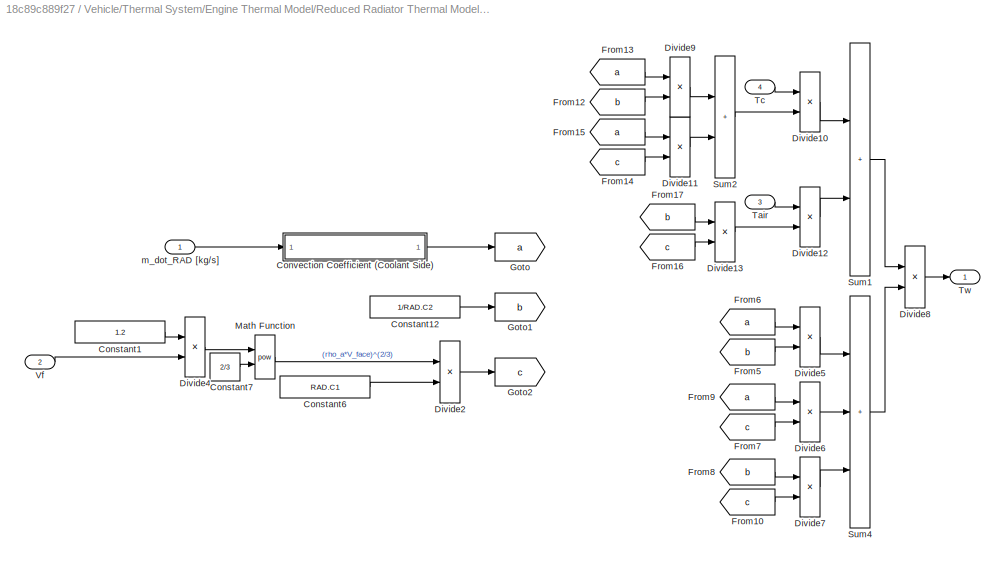
BLOCK [SubSystem] Vehicle/Thermal System/Engine Thermal Model/Reduced Radiator Thermal Model (1 Node - 1 Mass)/Radiator Thermal Model/Singular Perturbation Model
  Ports = [4, 1]
  RequestExecContextInheritance = off
BLOCK [Constant] Vehicle/Thermal System/Engine Thermal Model/Reduced Radiator Thermal Model (1 Node - 1 Mass)/Radiator Thermal Model/Singular Perturbation Model/Constant1
  Value = 1.2
BLOCK [Constant] Vehicle/Thermal System/Engine Thermal Model/Reduced Radiator Thermal Model (1 Node - 1 Mass)/Radiator Thermal Model/Singular Perturbation Model/Constant12
  Value = 1/RAD.C2
BLOCK [Constant] Vehicle/Thermal System/Engine Thermal Model/Reduced Radiator Thermal Model (1 Node - 1 Mass)/Radiator Thermal Model/Singular Perturbation Model/Constant6
  Value = RAD.C1
BLOCK [Constant] Vehicle/Thermal System/Engine Thermal Model/Reduced Radiator Thermal Model (1 Node - 1 Mass)/Radiator Thermal Model/Singular Perturbation Model/Constant7
  Value = 2/3
BLOCK [SubSystem] Vehicle/Thermal System/Engine Thermal Model/Reduced Radiator Thermal Model (1 Node - 1 Mass)/Radiator Thermal Model/Singular Perturbation Model/Convection Coefficient (Coolant Side)
  Ports = [1, 1]
  RequestExecContextInheritance = off
BLOCK [Outport] Vehicle/Thermal System/Engine Thermal Model/Reduced Radiator Thermal Model (1 Node - 1 Mass)/Radiator Thermal Model/Singular Perturbation Model/Convection Coefficient (Coolant Side)/C_conv
  VectorParamsAs1DForOutWhenUnconnected = off
BLOCK [Constant] Vehicle/Thermal System/Engine Thermal Model/Reduced Radiator Thermal Model (1 Node - 1 Mass)/Radiator Thermal Model/Singular Perturbation Model/Convection Coefficient (Coolant Side)/Constant
  Value = RAD.C_convMIN
BLOCK [Constant] Vehicle/Thermal System/Engine Thermal Model/Reduced Radiator Thermal Model (1 Node - 1 Mass)/Radiator Thermal Model/Singular Perturbation Model/Convection Coefficient (Coolant Side)/Constant1
  Value = RAD.beta
BLOCK [Constant] Vehicle/Thermal System/Engine Thermal Model/Reduced Radiator Thermal Model (1 Node - 1 Mass)/Radiator Thermal Model/Singular Perturbation Model/Convection Coefficient (Coolant Side)/Constant3
  Value = RAD.C_f
BLOCK [Constant] Vehicle/Thermal System/Engine Thermal Model/Reduced Radiator Thermal Model (1 Node - 1 Mass)/Radiator Thermal Model/Singular Perturbation Model/Convection Coefficient (Coolant Side)/Constant4
  Value = RAD.C3
BLOCK [Product] Vehicle/Thermal System/Engine Thermal Model/Reduced Radiator Thermal Model (1 Node - 1 Mass)/Radiator Thermal Model/Singular Perturbation Model/Convection Coefficient (Coolant Side)/Divide4
  Inputs = **/
  Ports = [3, 1]
BLOCK [Math] Vehicle/Thermal System/Engine Thermal Model/Reduced Radiator Thermal Model (1 Node - 1 Mass)/Radiator Thermal Model/Singular Perturbation Model/Convection Coefficient (Coolant Side)/Math Function2
  Operator = pow
  Ports = [2, 1]
  SignedPower = on
BLOCK [Switch] Vehicle/Thermal System/Engine Thermal Model/Reduced Radiator Thermal Model (1 Node - 1 Mass)/Radiator Thermal Model/Singular Perturbation Model/Convection Coefficient (Coolant Side)/Switch
  Criteria = u2 > Threshold
  InputSameDT = off
  SaturateOnIntegerOverflow = off
  Threshold = 0.01
BLOCK [Inport] Vehicle/Thermal System/Engine Thermal Model/Reduced Radiator Thermal Model (1 Node - 1 Mass)/Radiator Thermal Model/Singular Perturbation Model/Convection Coefficient (Coolant Side)/m_dot_RAD [kg//s]
BLOCK [InportShadow] Vehicle/Thermal System/Engine Thermal Model/Reduced Radiator Thermal Model (1 Node - 1 Mass)/Radiator Thermal Model/Singular Perturbation Model/Convection Coefficient (Coolant Side)/m_dot_RAD [kg//s]1
BLOCK [Product] Vehicle/Thermal System/Engine Thermal Model/Reduced Radiator Thermal Model (1 Node - 1 Mass)/Radiator Thermal Model/Singular Perturbation Model/Divide10
  Inputs = **
  Ports = [2, 1]
BLOCK [Product] Vehicle/Thermal System/Engine Thermal Model/Reduced Radiator Thermal Model (1 Node - 1 Mass)/Radiator Thermal Model/Singular Perturbation Model/Divide11
  Inputs = **
  Ports = [2, 1]
BLOCK [Product] Vehicle/Thermal System/Engine Thermal Model/Reduced Radiator Thermal Model (1 Node - 1 Mass)/Radiator Thermal Model/Singular Perturbation Model/Divide12
  Inputs = **
  Ports = [2, 1]
BLOCK [Product] Vehicle/Thermal System/Engine Thermal Model/Reduced Radiator Thermal Model (1 Node - 1 Mass)/Radiator Thermal Model/Singular Perturbation Model/Divide13
  Inputs = **
  Ports = [2, 1]
BLOCK [Product] Vehicle/Thermal System/Engine Thermal Model/Reduced Radiator Thermal Model (1 Node - 1 Mass)/Radiator Thermal Model/Singular Perturbation Model/Divide2
  Inputs = */
  Ports = [2, 1]
BLOCK [Product] Vehicle/Thermal System/Engine Thermal Model/Reduced Radiator Thermal Model (1 Node - 1 Mass)/Radiator Thermal Model/Singular Perturbation Model/Divide4
  Inputs = **
  Ports = [2, 1]
BLOCK [Product] Vehicle/Thermal System/Engine Thermal Model/Reduced Radiator Thermal Model (1 Node - 1 Mass)/Radiator Thermal Model/Singular Perturbation Model/Divide5
  Inputs = **
  Ports = [2, 1]
BLOCK [Product] Vehicle/Thermal System/Engine Thermal Model/Reduced Radiator Thermal Model (1 Node - 1 Mass)/Radiator Thermal Model/Singular Perturbation Model/Divide6
  Inputs = **
  Ports = [2, 1]
BLOCK [Product] Vehicle/Thermal System/Engine Thermal Model/Reduced Radiator Thermal Model (1 Node - 1 Mass)/Radiator Thermal Model/Singular Perturbation Model/Divide7
  Inputs = **
  Ports = [2, 1]
BLOCK [Product] Vehicle/Thermal System/Engine Thermal Model/Reduced Radiator Thermal Model (1 Node - 1 Mass)/Radiator Thermal Model/Singular Perturbation Model/Divide8
  Inputs = */
  Ports = [2, 1]
BLOCK [Product] Vehicle/Thermal System/Engine Thermal Model/Reduced Radiator Thermal Model (1 Node - 1 Mass)/Radiator Thermal Model/Singular Perturbation Model/Divide9
  Inputs = **
  Ports = [2, 1]
BLOCK [From] Vehicle/Thermal System/Engine Thermal Model/Reduced Radiator Thermal Model (1 Node - 1 Mass)/Radiator Thermal Model/Singular Perturbation Model/From10
  GotoTag = c
BLOCK [From] Vehicle/Thermal System/Engine Thermal Model/Reduced Radiator Thermal Model (1 Node - 1 Mass)/Radiator Thermal Model/Singular Perturbation Model/From12
  GotoTag = b
BLOCK [From] Vehicle/Thermal System/Engine Thermal Model/Reduced Radiator Thermal Model (1 Node - 1 Mass)/Radiator Thermal Model/Singular Perturbation Model/From13
  GotoTag = a
BLOCK [From] Vehicle/Thermal System/Engine Thermal Model/Reduced Radiator Thermal Model (1 Node - 1 Mass)/Radiator Thermal Model/Singular Perturbation Model/From14
  GotoTag = c
BLOCK [From] Vehicle/Thermal System/Engine Thermal Model/Reduced Radiator Thermal Model (1 Node - 1 Mass)/Radiator Thermal Model/Singular Perturbation Model/From15
  GotoTag = a
BLOCK [From] Vehicle/Thermal System/Engine Thermal Model/Reduced Radiator Thermal Model (1 Node - 1 Mass)/Radiator Thermal Model/Singular Perturbation Model/From16
  GotoTag = c
BLOCK [From] Vehicle/Thermal System/Engine Thermal Model/Reduced Radiator Thermal Model (1 Node - 1 Mass)/Radiator Thermal Model/Singular Perturbation Model/From17
  GotoTag = b
BLOCK [From] Vehicle/Thermal System/Engine Thermal Model/Reduced Radiator Thermal Model (1 Node - 1 Mass)/Radiator Thermal Model/Singular Perturbation Model/From5
  GotoTag = b
BLOCK [From] Vehicle/Thermal System/Engine Thermal Model/Reduced Radiator Thermal Model (1 Node - 1 Mass)/Radiator Thermal Model/Singular Perturbation Model/From6
  GotoTag = a
BLOCK [From] Vehicle/Thermal System/Engine Thermal Model/Reduced Radiator Thermal Model (1 Node - 1 Mass)/Radiator Thermal Model/Singular Perturbation Model/From7
  GotoTag = c
BLOCK [From] Vehicle/Thermal System/Engine Thermal Model/Reduced Radiator Thermal Model (1 Node - 1 Mass)/Radiator Thermal Model/Singular Perturbation Model/From8
  GotoTag = b
BLOCK [From] Vehicle/Thermal System/Engine Thermal Model/Reduced Radiator Thermal Model (1 Node - 1 Mass)/Radiator Thermal Model/Singular Perturbation Model/From9
  GotoTag = a
BLOCK [Goto] Vehicle/Thermal System/Engine Thermal Model/Reduced Radiator Thermal Model (1 Node - 1 Mass)/Radiator Thermal Model/Singular Perturbation Model/Goto
  GotoTag = a
BLOCK [Goto] Vehicle/Thermal System/Engine Thermal Model/Reduced Radiator Thermal Model (1 Node - 1 Mass)/Radiator Thermal Model/Singular Perturbation Model/Goto1
  GotoTag = b
BLOCK [Goto] Vehicle/Thermal System/Engine Thermal Model/Reduced Radiator Thermal Model (1 Node - 1 Mass)/Radiator Thermal Model/Singular Perturbation Model/Goto2
  GotoTag = c
BLOCK [Math] Vehicle/Thermal System/Engine Thermal Model/Reduced Radiator Thermal Model (1 Node - 1 Mass)/Radiator Thermal Model/Singular Perturbation Model/Math Function
  Operator = pow
  Ports = [2, 1]
  SignedPower = on
BLOCK [Sum] Vehicle/Thermal System/Engine Thermal Model/Reduced Radiator Thermal Model (1 Node - 1 Mass)/Radiator Thermal Model/Singular Perturbation Model/Sum1
  IconShape = rectangular
  Ports = [2, 1]
BLOCK [Sum] Vehicle/Thermal System/Engine Thermal Model/Reduced Radiator Thermal Model (1 Node - 1 Mass)/Radiator Thermal Model/Singular Perturbation Model/Sum2
  IconShape = rectangular
  Ports = [2, 1]
BLOCK [Sum] Vehicle/Thermal System/Engine Thermal Model/Reduced Radiator Thermal Model (1 Node - 1 Mass)/Radiator Thermal Model/Singular Perturbation Model/Sum4
  IconShape = rectangular
  Inputs = +++
  Ports = [3, 1]
BLOCK [Inport] Vehicle/Thermal System/Engine Thermal Model/Reduced Radiator Thermal Model (1 Node - 1 Mass)/Radiator Thermal Model/Singular Perturbation Model/Tair
  Port = 3
BLOCK [Inport] Vehicle/Thermal System/Engine Thermal Model/Reduced Radiator Thermal Model (1 Node - 1 Mass)/Radiator Thermal Model/Singular Perturbation Model/Tc
  Port = 4
BLOCK [Outport] Vehicle/Thermal System/Engine Thermal Model/Reduced Radiator Thermal Model (1 Node - 1 Mass)/Radiator Thermal Model/Singular Perturbation Model/Tw
  VectorParamsAs1DForOutWhenUnconnected = off
BLOCK [Inport] Vehicle/Thermal System/Engine Thermal Model/Reduced Radiator Thermal Model (1 Node - 1 Mass)/Radiator Thermal Model/Singular Perturbation Model/Vf
  Port = 2
BLOCK [Inport] Vehicle/Thermal System/Engine Thermal Model/Reduced Radiator Thermal Model (1 Node - 1 Mass)/Radiator Thermal Model/Singular Perturbation Model/m_dot_RAD [kg//s]
BLOCK [Sum] Vehicle/Thermal System/Engine Thermal Model/Reduced Radiator Thermal Model (1 Node - 1 Mass)/Radiator Thermal Model/Sum
  IconShape = rectangular
  Inputs = +-
  Ports = [2, 1]
BLOCK [Sum] Vehicle/Thermal System/Engine Thermal Model/Reduced Radiator Thermal Model (1 Node - 1 Mass)/Radiator Thermal Model/Sum1
  IconShape = rectangular
  Inputs = +++
  Ports = [3, 1]
BLOCK [Sum] Vehicle/Thermal System/Engine Thermal Model/Reduced Radiator Thermal Model (1 Node - 1 Mass)/Radiator Thermal Model/Sum3
  IconShape = rectangular
  Inputs = +-
  Ports = [2, 1]
BLOCK [Sum] Vehicle/Thermal System/Engine Thermal Model/Reduced Radiator Thermal Model (1 Node - 1 Mass)/Radiator Thermal Model/Sum4
  IconShape = rectangular
  Inputs = +-
  Ports = [2, 1]
BLOCK [Inport] Vehicle/Thermal System/Engine Thermal Model/Reduced Radiator Thermal Model (1 Node - 1 Mass)/Radiator Thermal Model/T_RAD_in [K] 
  Port = 4
BLOCK [Inport] Vehicle/Thermal System/Engine Thermal Model/Reduced Radiator Thermal Model (1 Node - 1 Mass)/Radiator Thermal Model/T_air
  Port = 2
BLOCK [Outport] Vehicle/Thermal System/Engine Thermal Model/Reduced Radiator Thermal Model (1 Node - 1 Mass)/Radiator Thermal Model/Tc
  VectorParamsAs1DForOutWhenUnconnected = off
BLOCK [Inport] Vehicle/Thermal System/Engine Thermal Model/Reduced Radiator Thermal Model (1 Node - 1 Mass)/Radiator Thermal Model/Vf
  Port = 3
BLOCK [Inport] Vehicle/Thermal System/Engine Thermal Model/Reduced Radiator Thermal Model (1 Node - 1 Mass)/Radiator Thermal Model/m_dot_RAD [kg//s]
BLOCK [Sum] Vehicle/Thermal System/Engine Thermal Model/Reduced Radiator Thermal Model (1 Node - 1 Mass)/Sum3
  IconShape = rectangular
  Inputs = +-
  Ports = [2, 1]
BLOCK [Inport] Vehicle/Thermal System/Engine Thermal Model/Reduced Radiator Thermal Model (1 Node - 1 Mass)/T_air [K]
  Port = 3
BLOCK [Inport] Vehicle/Thermal System/Engine Thermal Model/Reduced Radiator Thermal Model (1 Node - 1 Mass)/T_cool_RAD_in [K]
BLOCK [Outport] Vehicle/Thermal System/Engine Thermal Model/Reduced Radiator Thermal Model (1 Node - 1 Mass)/T_cool_RAD_out [K]
  VectorParamsAs1DForOutWhenUnconnected = off
BLOCK [Inport] Vehicle/Thermal System/Engine Thermal Model/Reduced Radiator Thermal Model (1 Node - 1 Mass)/V_face [m//s]
  Port = 4
BLOCK [Inport] Vehicle/Thermal System/Engine Thermal Model/Reduced Radiator Thermal Model (1 Node - 1 Mass)/m_dot_RAD [kg//s]
  Port = 2
BLOCK [Inport] Vehicle/Thermal System/Engine Thermal Model/T_ambient [K]
  Port = 4
BLOCK [Outport] Vehicle/Thermal System/Engine Thermal Model/T_cool_ENG_in [K]
  Port = 3
  VectorParamsAs1DForOutWhenUnconnected = off
BLOCK [Outport] Vehicle/Thermal System/Engine Thermal Model/T_cool_RAD_in [K]
  Port = 4
  VectorParamsAs1DForOutWhenUnconnected = off
BLOCK [Outport] Vehicle/Thermal System/Engine Thermal Model/T_cool_RAD_out [K]
  VectorParamsAs1DForOutWhenUnconnected = off
BLOCK [Inport] Vehicle/Thermal System/Engine Thermal Model/Thermostat Position [%]
  Port = 3
BLOCK [Inport] Vehicle/Thermal System/Engine Thermal Model/V_face [m//s]
  Port = 5
BLOCK [Inport] Vehicle/Thermal System/Engine Torque [Nm]
BLOCK [SubSystem] Vehicle/Thermal System/Fan Control
  Ports = [3, 1]
  RequestExecContextInheritance = off
BLOCK [Constant] Vehicle/Thermal System/Fan Control/Fan Min Speed [rpm]
  Value = 200
BLOCK [Constant] Vehicle/Thermal System/Fan Control/Fan OFF
  Value = 0
BLOCK [Constant] Vehicle/Thermal System/Fan Control/Fan ON 
BLOCK [Constant] Vehicle/Thermal System/Fan Control/Fan Pulley Ratio
  Value = FAN.pulley_ratio
BLOCK [Outport] Vehicle/Thermal System/Fan Control/Fan_Spd [rpm]
  VectorParamsAs1DForOutWhenUnconnected = off
BLOCK [Switch] Vehicle/Thermal System/Fan Control/IF T_eng is > 367 K and T_stat = 100% open, then Fan ON1
  InputSameDT = off
  SaturateOnIntegerOverflow = off
  Threshold = 1
BLOCK [Logic] Vehicle/Thermal System/Fan Control/Logical Operator1
  AllPortsSameDT = off
  OutDataTypeStr = boolean
  Ports = [2, 1]
BLOCK [Inport] Vehicle/Thermal System/Fan Control/N_eng [rpm]
BLOCK [Product] Vehicle/Thermal System/Fan Control/Product2
  Inputs = 3
  Ports = [3, 1]
BLOCK [Relay] Vehicle/Thermal System/Fan Control/Relay2
  OffOutputValue = 1
  OffSwitchValue = 0
  OnOutputValue = 0
  OnSwitchValue = 5
BLOCK [Relay] Vehicle/Thermal System/Fan Control/Relay3
  OffSwitchValue = 20
  OnSwitchValue = 25
BLOCK [Switch] Vehicle/Thermal System/Fan Control/Switch1
  Criteria = u2 > Threshold
  InputSameDT = off
  SaturateOnIntegerOverflow = off
BLOCK [Inport] Vehicle/Thermal System/Fan Control/T_ENG [Nm]
  Port = 2
BLOCK [Inport] Vehicle/Thermal System/Fan Control/T_STAT Pos. [%]
  Port = 3
BLOCK [SubSystem] Vehicle/Thermal System/Radiator Fan Map
  Ports = [2, 2]
  RequestExecContextInheritance = off
BLOCK [Constant] Vehicle/Thermal System/Radiator Fan Map/Air Density
  Value = RAD.Air_rho
BLOCK [Product] Vehicle/Thermal System/Radiator Fan Map/Divide
  Inputs = *//
  Ports = [3, 1]
BLOCK [Constant] Vehicle/Thermal System/Radiator Fan Map/Face Area [m^2]
  Value = RAD.A_face
BLOCK [Lookup_n-D] Vehicle/Thermal System/Radiator Fan Map/Fan Power Consumption [kW]
  BreakpointsForDimension1 = FAN.Speed
  NumberOfTableDimensions = 1
  Ports = [1, 1]
  RndMeth = Simplest
  Table = FAN.Power
BLOCK [Outport] Vehicle/Thermal System/Radiator Fan Map/Fan Power [kW]
  Port = 2
  VectorParamsAs1DForOutWhenUnconnected = off
BLOCK [Inport] Vehicle/Thermal System/Radiator Fan Map/Fan Speed [rpm]
  Port = 2
BLOCK [Lookup_n-D] Vehicle/Thermal System/Radiator Fan Map/Fan Table
  BreakpointsForDimension1 = FAN.N
  BreakpointsForDimension2 = FAN.Vspd
  ExtrapMethod = Clip
  Ports = [2, 1]
  RndMeth = Simplest
  Table = FAN.RAD_AGS_o
BLOCK [Outport] Vehicle/Thermal System/Radiator Fan Map/RAD_Air_Face_V [m//s]
  VectorParamsAs1DForOutWhenUnconnected = off
BLOCK [Inport] Vehicle/Thermal System/Radiator Fan Map/Vehicle Speed [m//s]
BLOCK [Sum] Vehicle/Thermal System/Sum
  Inputs = |+-
  Ports = [2, 1]
BLOCK [Sum] Vehicle/Thermal System/Sum1
  Inputs = |+-
  Ports = [2, 1]
BLOCK [Sum] Vehicle/Thermal System/Sum2
  Inputs = |+-
  Ports = [2, 1]
BLOCK [Terminator] Vehicle/Thermal System/Terminator
BLOCK [Terminator] Vehicle/Thermal System/Terminator1
BLOCK [Terminator] Vehicle/Thermal System/Terminator2
BLOCK [Terminator] Vehicle/Thermal System/Terminator3
BLOCK [Inport] Vehicle/Thermal System/Vehicle Speed [m//s]
  Port = 3
BLOCK [SubSystem] Vehicle/Vehicle Road Load
  Ports = [4, 3]
  RequestExecContextInheritance = off
BLOCK [Sum] Vehicle/Vehicle Road Load/Add
  IconShape = rectangular
  Inputs = +----
  Ports = [5, 1]
BLOCK [SubSystem] Vehicle/Vehicle Road Load/Aero Drag
  Ports = [1, 1]
  RequestExecContextInheritance = off
BLOCK [Outport] Vehicle/Vehicle Road Load/Aero Drag/F_drag [Nm]
  VectorParamsAs1DForOutWhenUnconnected = off
BLOCK [Gain] Vehicle/Vehicle Road Load/Aero Drag/Gain1
  Gain = 0.5*VEH.Af*ENV.rhoAir
BLOCK [Math] Vehicle/Vehicle Road Load/Aero Drag/Math Function
  Operator = magnitude^2
  Ports = [1, 1]
  SignedPower = on
BLOCK [Product] Vehicle/Vehicle Road Load/Aero Drag/Product
  Ports = [2, 1]
BLOCK [Inport] Vehicle/Vehicle Road Load/Aero Drag/Vehicle Speed [m//s]
BLOCK [Constant] Vehicle/Vehicle Road Load/Aero Drag/air drag coefficient3
  Value = VEH.Cd
BLOCK [Inport] Vehicle/Vehicle Road Load/Brake Torque [Nm]
  Port = 2
BLOCK [BusSelector] Vehicle/Vehicle Road Load/Bus Selector
  OutputSignals = Gear,Clutch
  Ports = [1, 2]
BLOCK [BusSelector] Vehicle/Vehicle Road Load/Bus Selector1
  OutputSignals = T_brk
  Ports = [1, 1]
BLOCK [Product] Vehicle/Vehicle Road Load/Divide
  Inputs = */
  Ports = [2, 1]
BLOCK [SubSystem] Vehicle/Vehicle Road Load/Effective mass External Inputs: Driveline Engagement, Gear
  Ports = [2, 2]
  RequestExecContextInheritance = off
BLOCK [Inport] Vehicle/Vehicle Road Load/Effective mass External Inputs: Driveline Engagement, Gear/Clutch
  Port = 2
BLOCK [Constant] Vehicle/Vehicle Road Load/Effective mass External Inputs: Driveline Engagement, Gear/Constant1
  Value = VEH.intertiaAux
BLOCK [Constant] Vehicle/Vehicle Road Load/Effective mass External Inputs: Driveline Engagement, Gear/Constant2
  Value = VEH.vehicleMass
BLOCK [Constant] Vehicle/Vehicle Road Load/Effective mass External Inputs: Driveline Engagement, Gear/Constant3
  Value = VEH.inertiaClutch
BLOCK [Constant] Vehicle/Vehicle Road Load/Effective mass External Inputs: Driveline Engagement, Gear/Constant4
  Value = VEH.inertiaAxle
BLOCK [Constant] Vehicle/Vehicle Road Load/Effective mass External Inputs: Driveline Engagement, Gear/Constant5
  Value = 0
BLOCK [Constant] Vehicle/Vehicle Road Load/Effective mass External Inputs: Driveline Engagement, Gear/Constant6
  Value = VEH.inertiaCrank
BLOCK [Constant] Vehicle/Vehicle Road Load/Effective mass External Inputs: Driveline Engagement, Gear/Constant7
  Value = VEH.inertiaWheel
BLOCK [Outport] Vehicle/Vehicle Road Load/Effective mass External Inputs: Driveline Engagement, Gear/Effective mass [kg] 
  VectorParamsAs1DForOutWhenUnconnected = off
BLOCK [Gain] Vehicle/Vehicle Road Load/Effective mass External Inputs: Driveline Engagement, Gear/Gain
  Gain = 1/VEH.tireRad^2
BLOCK [Gain] Vehicle/Vehicle Road Load/Effective mass External Inputs: Driveline Engagement, Gear/Gain2
  Gain = TRAN.finalDrive
BLOCK [Inport] Vehicle/Vehicle Road Load/Effective mass External Inputs: Driveline Engagement, Gear/Gear
BLOCK [Lookup_n-D] Vehicle/Vehicle Road Load/Effective mass External Inputs: Driveline Engagement, Gear/Gear Ratios
  BreakpointsForDimension1 = [1:TRAN.numGears]
  ExtrapMethod = Clip
  InternalRulePriority = Speed
  NumberOfTableDimensions = 1
  Ports = [1, 1]
  RndMeth = Simplest
  Table = TRAN.gears
  UseLastTableValue = on
BLOCK [Math] Vehicle/Vehicle Road Load/Effective mass External Inputs: Driveline Engagement, Gear/Math Function
  Operator = magnitude^2
  Ports = [1, 1]
  SignedPower = on
BLOCK [Product] Vehicle/Vehicle Road Load/Effective mass External Inputs: Driveline Engagement, Gear/Product1
  Ports = [2, 1]
BLOCK [Sum] Vehicle/Vehicle Road Load/Effective mass External Inputs: Driveline Engagement, Gear/Sum1
  IconShape = rectangular
  Ports = [2, 1]
BLOCK [Sum] Vehicle/Vehicle Road Load/Effective mass External Inputs: Driveline Engagement, Gear/Sum2
  IconShape = rectangular
  Inputs = +++
  Ports = [3, 1]
BLOCK [Sum] Vehicle/Vehicle Road Load/Effective mass External Inputs: Driveline Engagement, Gear/Sum3
  IconShape = rectangular
  Inputs = +++
  Ports = [3, 1]
BLOCK [Switch] Vehicle/Vehicle Road Load/Effective mass External Inputs: Driveline Engagement, Gear/Switch
  Criteria = u2 > Threshold
  InputSameDT = off
  SaturateOnIntegerOverflow = off
BLOCK [Outport] Vehicle/Vehicle Road Load/Effective mass External Inputs: Driveline Engagement, Gear/driveRatio
  Port = 2
BLOCK [Outport] Vehicle/Vehicle Road Load/Engine Speed [rpm]
  Port = 2
  VectorParamsAs1DForOutWhenUnconnected = off
BLOCK [From] Vehicle/Vehicle Road Load/From
  GotoTag = V_veh
BLOCK [From] Vehicle/Vehicle Road Load/From1
  GotoTag = driveRatio
BLOCK [Gain] Vehicle/Vehicle Road Load/Gain
  Gain = 1/VEH.tireRad
BLOCK [Gain] Vehicle/Vehicle Road Load/Gain1
  Gain = 1/VEH.tireRad
BLOCK [Inport] Vehicle/Vehicle Road Load/Gear//Clutch 
  Port = 4
BLOCK [Goto] Vehicle/Vehicle Road Load/Goto
  GotoTag = V_veh
BLOCK [Goto] Vehicle/Vehicle Road Load/Goto1
  GotoTag = driveRatio
BLOCK [SubSystem] Vehicle/Vehicle Road Load/Grade
  Ports = [1, 1]
  RequestExecContextInheritance = off
BLOCK [Gain] Vehicle/Vehicle Road Load/Grade/Gain
  Gain = VEH.vehicleMass*ENV.g
BLOCK [Outport] Vehicle/Vehicle Road Load/Grade/Grade Force [Nm]
  VectorParamsAs1DForOutWhenUnconnected = off
BLOCK [Trigonometry] Vehicle/Vehicle Road Load/Grade/Trigonometric Function1
  Ports = [1, 1]
BLOCK [Inport] Vehicle/Vehicle Road Load/Grade/roadGrade [rad]
BLOCK [Integrator] Vehicle/Vehicle Road Load/Integrator
  LimitOutput = on
  LowerSaturationLimit = 0
  Ports = [1, 1]
BLOCK [Integrator] Vehicle/Vehicle Road Load/Integrator1
  InitialCondition = x_0
  LimitOutput = on
  LowerSaturationLimit = 0
  Ports = [1, 1]
BLOCK [Inport] Vehicle/Vehicle Road Load/Road Grade [rad]
  Port = 3
BLOCK [SubSystem] Vehicle/Vehicle Road Load/Rolling Resistance
  Ports = [2, 1]
  RequestExecContextInheritance = off
BLOCK [Sum] Vehicle/Vehicle Road Load/Rolling Resistance/Add4
  IconShape = rectangular
  Inputs = +++
  Ports = [3, 1]
BLOCK [Constant] Vehicle/Vehicle Road Load/Rolling Resistance/Constant
  Value = VEH.vehicleMass*ENV.g
BLOCK [Outport] Vehicle/Vehicle Road Load/Rolling Resistance/F_roll [Nm]
  VectorParamsAs1DForOutWhenUnconnected = off
BLOCK [Gain] Vehicle/Vehicle Road Load/Rolling Resistance/Gain
  Gain = VEH.weightDist(1)
BLOCK [Gain] Vehicle/Vehicle Road Load/Rolling Resistance/Gain1
  Gain = VEH.weightDist(2)
BLOCK [Gain] Vehicle/Vehicle Road Load/Rolling Resistance/Gain2
  Gain = VEH.weightDist(3)
BLOCK [Gain] Vehicle/Vehicle Road Load/Rolling Resistance/Gain7
  Gain = VEH.CrrSteer
BLOCK [Gain] Vehicle/Vehicle Road Load/Rolling Resistance/Gain8
  Gain = VEH.CrrDrive
BLOCK [Gain] Vehicle/Vehicle Road Load/Rolling Resistance/Gain9
  Gain = VEH.CrrTrailer
BLOCK [Product] Vehicle/Vehicle Road Load/Rolling Resistance/Product
  Inputs = 3
  Ports = [3, 1]
BLOCK [Inport] Vehicle/Vehicle Road Load/Rolling Resistance/Road Grade [rad]
BLOCK [Signum] Vehicle/Vehicle Road Load/Rolling Resistance/Sign
BLOCK [Gain] Vehicle/Vehicle Road Load/Rolling Resistance/Ste Factor
  Gain = 0.9938
BLOCK [Trigonometry] Vehicle/Vehicle Road Load/Rolling Resistance/Trigonometric Function
  Operator = cos
  Ports = [1, 1]
BLOCK [Inport] Vehicle/Vehicle Road Load/Rolling Resistance/Vehicle Speed [m//s]
  Port = 2
BLOCK [SubSystem] Vehicle/Vehicle Road Load/Subsystem
  Ports = [3, 1]
  RequestExecContextInheritance = off
BLOCK [Inport] Vehicle/Vehicle Road Load/Subsystem/Clutch
  Port = 2
BLOCK [Constant] Vehicle/Vehicle Road Load/Subsystem/Constant1
  Value = -300
BLOCK [Constant] Vehicle/Vehicle Road Load/Subsystem/Constant3
  Value = ICE.Nmin
BLOCK [SubSystem] Vehicle/Vehicle Road Load/Subsystem/Disengaged
  Ports = [2, 1, 1]
  RequestExecContextInheritance = off
  TreatAsAtomicUnit = on
BLOCK [EnablePort] Vehicle/Vehicle Road Load/Subsystem/Disengaged/Enable
  Ports = []
  StatesWhenEnabling = reset
BLOCK [Gain] Vehicle/Vehicle Road Load/Subsystem/Disengaged/Gain1
  Gain = 1/VEH.inertiaCrank
BLOCK [Integrator] Vehicle/Vehicle Road Load/Subsystem/Disengaged/Integrator
  InitialConditionSource = external
  Ports = [2, 1]
BLOCK [Outport] Vehicle/Vehicle Road Load/Subsystem/Disengaged/Out1
  InitialOutput = ICE.Nmin
  VectorParamsAs1DForOutWhenUnconnected = off
BLOCK [Inport] Vehicle/Vehicle Road Load/Subsystem/Disengaged/RPM init
BLOCK [Inport] Vehicle/Vehicle Road Load/Subsystem/Disengaged/T_eng
  Port = 2
BLOCK [SubSystem] Vehicle/Vehicle Road Load/Subsystem/Engaged
  Ports = [2, 1, 1]
  RequestExecContextInheritance = off
  TreatAsAtomicUnit = on
BLOCK [Product] Vehicle/Vehicle Road Load/Subsystem/Engaged/Divide1
  Inputs = **
  Ports = [2, 1]
BLOCK [EnablePort] Vehicle/Vehicle Road Load/Subsystem/Engaged/Enable
  Ports = []
  StatesWhenEnabling = reset
BLOCK [Gain] Vehicle/Vehicle Road Load/Subsystem/Engaged/Gain2
  Gain = 30/pi
BLOCK [Gain] Vehicle/Vehicle Road Load/Subsystem/Engaged/Gain3
  Gain = 1/VEH.tireRad
BLOCK [Outport] Vehicle/Vehicle Road Load/Subsystem/Engaged/Out1
  InitialOutput = ICE.Nmin
  VectorParamsAs1DForOutWhenUnconnected = off
BLOCK [Inport] Vehicle/Vehicle Road Load/Subsystem/Engaged/Vehicle Speed [m//s]
BLOCK [Inport] Vehicle/Vehicle Road Load/Subsystem/Engaged/drive ratio
  Port = 2
BLOCK [Outport] Vehicle/Vehicle Road Load/Subsystem/Engine Speed [rpm]
  VectorParamsAs1DForOutWhenUnconnected = off
BLOCK [Logic] Vehicle/Vehicle Road Load/Subsystem/Logical Operator
  AllPortsSameDT = off
  Operator = NOT
  OutDataTypeStr = boolean
  Ports = [1, 1]
BLOCK [Memory] Vehicle/Vehicle Road Load/Subsystem/Memory
  InitialCondition = ICE.Nmin
BLOCK [MinMax] Vehicle/Vehicle Road Load/Subsystem/MinMax
  Function = max
  Inputs = 2
  Ports = [2, 1]
BLOCK [Switch] Vehicle/Vehicle Road Load/Subsystem/Switch1
  Criteria = u2 > Threshold
  InputSameDT = off
  SaturateOnIntegerOverflow = off
BLOCK [Inport] Vehicle/Vehicle Road Load/Subsystem/Vehicle Speed [m//s]
BLOCK [Inport] Vehicle/Vehicle Road Load/Subsystem/driveRatio
  Port = 3
BLOCK [Outport] Vehicle/Vehicle Road Load/Vehicle Position [m]
  Port = 3
  VectorParamsAs1DForOutWhenUnconnected = off
BLOCK [Outport] Vehicle/Vehicle Road Load/Vehicle Speed [m//s]
  VectorParamsAs1DForOutWhenUnconnected = off
BLOCK [Inport] Vehicle/Vehicle Road Load/Wheel Torque [Nm]
BLOCK [Outport] Vehicle/Velocity
  Port = 2
ANNOTATION Vehicle/Fuel Consumption: SS Fuel Consumption [g/s]
ANNOTATION Vehicle/Thermal System/Engine Thermal Model: Engine Thermal Model
ANNOTATION Vehicle/Thermal System/Engine Thermal Model: Inputs
ANNOTATION Vehicle/Thermal System/Engine Thermal Model: Outputs
ANNOTATION Vehicle/Thermal System/Engine Thermal Model: Variables Passed Through Blocks
ANNOTATION Vehicle/Thermal System/Engine Thermal Model/Engine Thermal Model (Single Mass)/Mass 1: Block: Energy Balance
ANNOTATION Vehicle/Thermal System/Fan Control: Fan Controller
LINE Vehicle/CtrlTorque:1 -> Vehicle/Goto:1
LINE Vehicle/Drivetrain/Bus Selector:1 -> Vehicle/Drivetrain/Transfe Fcn (with initial outputs):1
LINE Vehicle/Drivetrain/EngineTorque [Nm]:1 -> Vehicle/Drivetrain/Product1:1
LINE Vehicle/Drivetrain/Gain2:1 -> Vehicle/Drivetrain/Product1:3
LINE Vehicle/Drivetrain/Gain3:1 -> Vehicle/Drivetrain/Product1:2
LINE Vehicle/Drivetrain/Gear Ratios:1 -> Vehicle/Drivetrain/Gain2:1
LINE Vehicle/Drivetrain/Gear//Clutch:1 -> Vehicle/Drivetrain/Bus Selector:1
LINE Vehicle/Drivetrain/Product1:1 -> Vehicle/Drivetrain/Wheel Torque [Nm]:1
LINE Vehicle/Drivetrain/Round:1 -> Vehicle/Drivetrain/Gear Ratios:1
NET Vehicle/Drivetrain/Transfe Fcn (with initial outputs):1 -> Vehicle/Drivetrain/Round:1, Vehicle/Drivetrain/Transmission Efficiency:1
LINE Vehicle/Drivetrain/Transmission Efficiency:1 -> Vehicle/Drivetrain/Gain3:1
LINE Vehicle/Drivetrain:1 -> Vehicle/Vehicle Road Load:1
NET Vehicle/Engine Model V7/Bus Selector:1 -> Vehicle/Engine Model V7/Engine Breathing :2, Vehicle/Engine Model V7/Fuel Model:3, Vehicle/Engine Model V7/Torque Production:3
LINE Vehicle/Engine Model V7/Engine Breathing /Air Dynamics/Constant1:1 -> Vehicle/Engine Model V7/Engine Breathing /Air Dynamics/Switch:3
LINE Vehicle/Engine Model V7/Engine Breathing /Air Dynamics/Constant:1 -> Vehicle/Engine Model V7/Engine Breathing /Air Dynamics/Switch:1
LINE Vehicle/Engine Model V7/Engine Breathing /Air Dynamics/From:1 -> Vehicle/Engine Model V7/Engine Breathing /Air Dynamics/Product:2
NET Vehicle/Engine Model V7/Engine Breathing /Air Dynamics/Integrator:1 -> Vehicle/Engine Model V7/Engine Breathing /Air Dynamics/Subtract:2, Vehicle/Engine Model V7/Engine Breathing /Air Dynamics/m_dot_eng [kg//s]:1
LINE Vehicle/Engine Model V7/Engine Breathing /Air Dynamics/Product:1 -> Vehicle/Engine Model V7/Engine Breathing /Air Dynamics/Integrator:1
LINE Vehicle/Engine Model V7/Engine Breathing /Air Dynamics/Subtract:1 -> Vehicle/Engine Model V7/Engine Breathing /Air Dynamics/Product:1
LINE Vehicle/Engine Model V7/Engine Breathing /Air Dynamics/Switch:1 -> Vehicle/Engine Model V7/Engine Breathing /Air Dynamics/Goto:1
LINE Vehicle/Engine Model V7/Engine Breathing /Air Dynamics/detla Torque [Nm]:1 -> Vehicle/Engine Model V7/Engine Breathing /Air Dynamics/Switch:2
LINE Vehicle/Engine Model V7/Engine Breathing /Air Dynamics/m_dot_SS [kg//s]:1 -> Vehicle/Engine Model V7/Engine Breathing /Air Dynamics/Subtract:1
LINE Vehicle/Engine Model V7/Engine Breathing /Air Dynamics:1 -> Vehicle/Engine Model V7/Engine Breathing /m_eng [kg//s]:1
NET Vehicle/Engine Model V7/Engine Breathing /Engine Speed [rpm]:1 -> Vehicle/Engine Model V7/Engine Breathing /Intake Manifold Pressure [kPa]:2, Vehicle/Engine Model V7/Engine Breathing /Intake Manifold Temperature [K]:2, Vehicle/Engine Model V7/Engine Breathing /Model for VE:3, Vehicle/Engine Model V7/Engine Breathing /Product:3
NET Vehicle/Engine Model V7/Engine Breathing /Engine Torqe Des [Nm]1:1 -> Vehicle/Engine Model V7/Engine Breathing /Memory:1, Vehicle/Engine Model V7/Engine Breathing /Subtract:1
NET Vehicle/Engine Model V7/Engine Breathing /Engine Torqe Des [Nm]:1 -> Vehicle/Engine Model V7/Engine Breathing /Intake Manifold Pressure [kPa]:1, Vehicle/Engine Model V7/Engine Breathing /Intake Manifold Temperature [K]:1
LINE Vehicle/Engine Model V7/Engine Breathing /Gain1:1 -> Vehicle/Engine Model V7/Engine Breathing /Air Dynamics:1
LINE Vehicle/Engine Model V7/Engine Breathing /Gain:1 -> Vehicle/Engine Model V7/Engine Breathing /Product:2
NET Vehicle/Engine Model V7/Engine Breathing /Intake Manifold Pressure [kPa]:1 -> Vehicle/Engine Model V7/Engine Breathing /Gain:1, Vehicle/Engine Model V7/Engine Breathing /Model for VE:1
NET Vehicle/Engine Model V7/Engine Breathing /Intake Manifold Temperature [K]:1 -> Vehicle/Engine Model V7/Engine Breathing /Model for VE:2, Vehicle/Engine Model V7/Engine Breathing /Product:4
LINE Vehicle/Engine Model V7/Engine Breathing /Memory:1 -> Vehicle/Engine Model V7/Engine Breathing /Subtract:2
LINE Vehicle/Engine Model V7/Engine Breathing /Model for VE/Add2:1 -> Vehicle/Engine Model V7/Engine Breathing /Model for VE/VE [-]:1
LINE Vehicle/Engine Model V7/Engine Breathing /Model for VE/Divide2:1 -> Vehicle/Engine Model V7/Engine Breathing /Model for VE/Add2:2
LINE Vehicle/Engine Model V7/Engine Breathing /Model for VE/Function for the k1 coeff1:1 -> Vehicle/Engine Model V7/Engine Breathing /Model for VE/Divide2:1
LINE Vehicle/Engine Model V7/Engine Breathing /Model for VE/Function for the k1 coeff:1 -> Vehicle/Engine Model V7/Engine Breathing /Model for VE/Add2:1
LINE Vehicle/Engine Model V7/Engine Breathing /Model for VE/MAP [kPa]:1 -> Vehicle/Engine Model V7/Engine Breathing /Model for VE/kPa to Pa:1
NET Vehicle/Engine Model V7/Engine Breathing /Model for VE/N_eng [RPM]:1 -> Vehicle/Engine Model V7/Engine Breathing /Model for VE/Function for the k1 coeff1:1, Vehicle/Engine Model V7/Engine Breathing /Model for VE/Function for the k1 coeff:1
LINE Vehicle/Engine Model V7/Engine Breathing /Model for VE/TIM [K]:1 -> Vehicle/Engine Model V7/Engine Breathing /Model for VE/Divide2:3
LINE Vehicle/Engine Model V7/Engine Breathing /Model for VE/kPa to Pa:1 -> Vehicle/Engine Model V7/Engine Breathing /Model for VE/Divide2:2
LINE Vehicle/Engine Model V7/Engine Breathing /Model for VE:1 -> Vehicle/Engine Model V7/Engine Breathing /Product:1
LINE Vehicle/Engine Model V7/Engine Breathing /Product:1 -> Vehicle/Engine Model V7/Engine Breathing /Gain1:1
LINE Vehicle/Engine Model V7/Engine Breathing /Subtract:1 -> Vehicle/Engine Model V7/Engine Breathing /Air Dynamics:2
LINE Vehicle/Engine Model V7/Engine Breathing :1 -> Vehicle/Engine Model V7/Fuel Model:2
NET Vehicle/Engine Model V7/Engine Speed [rpm]:1 -> Vehicle/Engine Model V7/Engine Breathing :1, Vehicle/Engine Model V7/Fuel Model:1, Vehicle/Engine Model V7/Torque Production:1
LINE Vehicle/Engine Model V7/Fuel Model/Divide1:1 -> Vehicle/Engine Model V7/Fuel Model/Gain2:1
LINE Vehicle/Engine Model V7/Fuel Model/Divide:1 -> Vehicle/Engine Model V7/Fuel Model/Switch:2
LINE Vehicle/Engine Model V7/Fuel Model/Engine Torqe Des [Nm]:1 -> Vehicle/Engine Model V7/Fuel Model/Fuel Consumtpion [mg//str]:1
LINE Vehicle/Engine Model V7/Fuel Model/Fuel Consumtpion [mg//str]:1 -> Vehicle/Engine Model V7/Fuel Model/Product:1
LINE Vehicle/Engine Model V7/Fuel Model/Gain1:1 -> Vehicle/Engine Model V7/Fuel Model/Switch:1
LINE Vehicle/Engine Model V7/Fuel Model/Gain2:1 -> Vehicle/Engine Model V7/Fuel Model/fuel [mg//cyc]:1
NET Vehicle/Engine Model V7/Fuel Model/Gain4:1 -> Vehicle/Engine Model V7/Fuel Model/Divide:2, Vehicle/Engine Model V7/Fuel Model/Switch:3
LINE Vehicle/Engine Model V7/Fuel Model/Gain:1 -> Vehicle/Engine Model V7/Fuel Model/Saturation:1
LINE Vehicle/Engine Model V7/Fuel Model/N [RPM]1:1 -> Vehicle/Engine Model V7/Fuel Model/Divide1:2
NET Vehicle/Engine Model V7/Fuel Model/N [RPM]:1 -> Vehicle/Engine Model V7/Fuel Model/Fuel Consumtpion [mg//str]:2, Vehicle/Engine Model V7/Fuel Model/Product:2
LINE Vehicle/Engine Model V7/Fuel Model/Product:1 -> Vehicle/Engine Model V7/Fuel Model/Gain4:1
LINE Vehicle/Engine Model V7/Fuel Model/Saturation1:1 -> Vehicle/Engine Model V7/Fuel Model/Divide1:1
NET Vehicle/Engine Model V7/Fuel Model/Saturation:1 -> Vehicle/Engine Model V7/Fuel Model/Divide:1, Vehicle/Engine Model V7/Fuel Model/Gain1:1
LINE Vehicle/Engine Model V7/Fuel Model/Switch:1 -> Vehicle/Engine Model V7/Fuel Model/Saturation1:1
LINE Vehicle/Engine Model V7/Fuel Model/m_dot_eng [kg//s]:1 -> Vehicle/Engine Model V7/Fuel Model/Gain:1
LINE Vehicle/Engine Model V7/Fuel Model:1 -> Vehicle/Engine Model V7/Torque Production:2
LINE Vehicle/Engine Model V7/T_end Desired [Nm]:1 -> Vehicle/Engine Model V7/Bus Selector:1
LINE Vehicle/Engine Model V7/Torque Production/Add:1 -> Vehicle/Engine Model V7/Torque Production/Gain1:1
LINE Vehicle/Engine Model V7/Torque Production/Constant1:1 -> Vehicle/Engine Model V7/Torque Production/Switch:3
LINE Vehicle/Engine Model V7/Torque Production/Constant:1 -> Vehicle/Engine Model V7/Torque Production/Switch:1
NET Vehicle/Engine Model V7/Torque Production/Engine Torqe Des [Nm]:1 -> Vehicle/Engine Model V7/Torque Production/Memory:1, Vehicle/Engine Model V7/Torque Production/Subtract:1
LINE Vehicle/Engine Model V7/Torque Production/FMEP Model:1 -> Vehicle/Engine Model V7/Torque Production/Add:2
LINE Vehicle/Engine Model V7/Torque Production/Fuel Dynamics/Constant1:1 -> Vehicle/Engine Model V7/Torque Production/Fuel Dynamics/Switch:3
LINE Vehicle/Engine Model V7/Torque Production/Fuel Dynamics/Constant:1 -> Vehicle/Engine Model V7/Torque Production/Fuel Dynamics/Switch:1
LINE Vehicle/Engine Model V7/Torque Production/Fuel Dynamics/From:1 -> Vehicle/Engine Model V7/Torque Production/Fuel Dynamics/Product:2
NET Vehicle/Engine Model V7/Torque Production/Fuel Dynamics/Integrator:1 -> Vehicle/Engine Model V7/Torque Production/Fuel Dynamics/Subtract:2, Vehicle/Engine Model V7/Torque Production/Fuel Dynamics/Torque [Nm]:1
LINE Vehicle/Engine Model V7/Torque Production/Fuel Dynamics/Product:1 -> Vehicle/Engine Model V7/Torque Production/Fuel Dynamics/Integrator:1
LINE Vehicle/Engine Model V7/Torque Production/Fuel Dynamics/Subtract:1 -> Vehicle/Engine Model V7/Torque Production/Fuel Dynamics/Product:1
LINE Vehicle/Engine Model V7/Torque Production/Fuel Dynamics/Switch:1 -> Vehicle/Engine Model V7/Torque Production/Fuel Dynamics/Goto:1
LINE Vehicle/Engine Model V7/Torque Production/Fuel Dynamics/T_SS [Nm]:1 -> Vehicle/Engine Model V7/Torque Production/Fuel Dynamics/Subtract:1
LINE Vehicle/Engine Model V7/Torque Production/Fuel Dynamics/detla Torque [Nm]:1 -> Vehicle/Engine Model V7/Torque Production/Fuel Dynamics/Switch:2
LINE Vehicle/Engine Model V7/Torque Production/Fuel Dynamics:1 -> Vehicle/Engine Model V7/Torque Production/T_eng [Nm]:1
LINE Vehicle/Engine Model V7/Torque Production/Gain1:1 -> Vehicle/Engine Model V7/Torque Production/Fuel Dynamics:1
LINE Vehicle/Engine Model V7/Torque Production/IMEP Model:1 -> Vehicle/Engine Model V7/Torque Production/Add:1
LINE Vehicle/Engine Model V7/Torque Production/Memory:1 -> Vehicle/Engine Model V7/Torque Production/Subtract:2
NET Vehicle/Engine Model V7/Torque Production/N [RPM]:1 -> Vehicle/Engine Model V7/Torque Production/FMEP Model:1, Vehicle/Engine Model V7/Torque Production/IMEP Model:1
LINE Vehicle/Engine Model V7/Torque Production/Subtract:1 -> Vehicle/Engine Model V7/Torque Production/Fuel Dynamics:2
LINE Vehicle/Engine Model V7/Torque Production/Switch:1 -> Vehicle/Engine Model V7/Torque Production/Add:3
NET Vehicle/Engine Model V7/Torque Production/fuel [mg//cyc]:1 -> Vehicle/Engine Model V7/Torque Production/FMEP Model:2, Vehicle/Engine Model V7/Torque Production/IMEP Model:2, Vehicle/Engine Model V7/Torque Production/Switch:2
LINE Vehicle/Engine Model V7/Torque Production:1 -> Vehicle/Engine Model V7/T_eng [Nm]:1
LINE Vehicle/Engine Model V7:1 -> Vehicle/Goto10:1
LINE Vehicle/From10:1 -> Vehicle/Thermal System:2
LINE Vehicle/From11:1 -> Vehicle/Fuel Consumption:3
LINE Vehicle/From12:1 -> Vehicle/Thermal System:1
LINE Vehicle/From13:1 -> Vehicle/Drivetrain:1
LINE Vehicle/From14:1 -> Vehicle/Fuel Consumption:1
LINE Vehicle/From1:1 -> Vehicle/Engine Model V7:1
LINE Vehicle/From20:1 -> Vehicle/Drivetrain:2
LINE Vehicle/From2:1 -> Vehicle/Velocity:1
LINE Vehicle/From3:1 -> Vehicle/Vehicle Road Load:4
LINE Vehicle/From4:1 -> Vehicle/Vehicle Road Load:2
LINE Vehicle/From6:1 -> Vehicle/Vehicle Road Load:3
LINE Vehicle/From7:1 -> Vehicle/Position:1
LINE Vehicle/From8:1 -> Vehicle/FanTorque:1
LINE Vehicle/From9:1 -> Vehicle/Engine Model V7:2
LINE Vehicle/From:1 -> Vehicle/Thermal System:3
LINE Vehicle/Fuel Consumption/ Fan Power [kW]:1 -> Vehicle/Fuel Consumption/Gain:1
NET Vehicle/Fuel Consumption/Divide:1 -> Vehicle/Fuel Consumption/Fan Torque [Nm]:1, Vehicle/Fuel Consumption/Sum:1
NET Vehicle/Fuel Consumption/Engine Speed [rpm]:1 -> Vehicle/Fuel Consumption/Fuel Consumtpion [mg//str]1:2, Vehicle/Fuel Consumption/Fuel Consumtpion [mg//str]:2, Vehicle/Fuel Consumption/Product1:2, Vehicle/Fuel Consumption/Product:2, Vehicle/Fuel Consumption/rpm to rad//s:1
NET Vehicle/Fuel Consumption/Engine Torque [Nm]:1 -> Vehicle/Fuel Consumption/Fuel Consumtpion [mg//str]1:1, Vehicle/Fuel Consumption/Sum:2
LINE Vehicle/Fuel Consumption/Fuel Consumtpion [mg//str]1:1 -> Vehicle/Fuel Consumption/Product1:1
LINE Vehicle/Fuel Consumption/Fuel Consumtpion [mg//str]:1 -> Vehicle/Fuel Consumption/Product:1
NET Vehicle/Fuel Consumption/Gain1:1 -> Vehicle/Fuel Consumption/Engine Fuel Consumption [g//s]:1, Vehicle/Fuel Consumption/Integrator1:1
NET Vehicle/Fuel Consumption/Gain4:1 -> Vehicle/Fuel Consumption/Integrator:1, Vehicle/Fuel Consumption/Total Fuel Consumption [g//s]:1
LINE Vehicle/Fuel Consumption/Gain:1 -> Vehicle/Fuel Consumption/Divide:1
LINE Vehicle/Fuel Consumption/Integrator1:1 -> Vehicle/Fuel Consumption/Terminator1:1
LINE Vehicle/Fuel Consumption/Integrator:1 -> Vehicle/Fuel Consumption/Terminator:1
LINE Vehicle/Fuel Consumption/Product1:1 -> Vehicle/Fuel Consumption/Gain1:1
LINE Vehicle/Fuel Consumption/Product:1 -> Vehicle/Fuel Consumption/Gain4:1
LINE Vehicle/Fuel Consumption/Sum:1 -> Vehicle/Fuel Consumption/Fuel Consumtpion [mg//str]:1
LINE Vehicle/Fuel Consumption/rpm to rad//s:1 -> Vehicle/Fuel Consumption/Divide:2
LINE Vehicle/Fuel Consumption:1 -> Vehicle/Terminator1:1
LINE Vehicle/Fuel Consumption:2 -> Vehicle/Terminator:1
LINE Vehicle/Fuel Consumption:3 -> Vehicle/Goto3:1
LINE Vehicle/Gear:1 -> Vehicle/Goto1:1
LINE Vehicle/Grade:1 -> Vehicle/Goto2:1
LINE Vehicle/Thermal System/Constant1:1 -> Vehicle/Thermal System/Sum:2
LINE Vehicle/Thermal System/Constant2:1 -> Vehicle/Thermal System/Sum1:2
LINE Vehicle/Thermal System/Constant3:1 -> Vehicle/Thermal System/Sum2:2
LINE Vehicle/Thermal System/Constant:1 -> Vehicle/Thermal System/Engine Thermal Model:4
LINE Vehicle/Thermal System/Coolant T-stat/Add:1 -> Vehicle/Thermal System/Coolant T-stat/Sum:1
LINE Vehicle/Thermal System/Coolant T-stat/Constant:1 -> Vehicle/Thermal System/Coolant T-stat/Divide:2
LINE Vehicle/Thermal System/Coolant T-stat/Divide:1 -> Vehicle/Thermal System/Coolant T-stat/Integrator:1
NET Vehicle/Thermal System/Coolant T-stat/Fcn1:1 -> Vehicle/Thermal System/Coolant T-stat/Temp - Mechanical Closing:1, Vehicle/Thermal System/Coolant T-stat/Temp - Mechanical Opening:1
LINE Vehicle/Thermal System/Coolant T-stat/Gain1:1 -> Vehicle/Thermal System/Coolant T-stat/Add:2
LINE Vehicle/Thermal System/Coolant T-stat/Gain:1 -> Vehicle/Thermal System/Coolant T-stat/Add:1
NET Vehicle/Thermal System/Coolant T-stat/Integrator:1 -> Vehicle/Thermal System/Coolant T-stat/Opening [%]:1, Vehicle/Thermal System/Coolant T-stat/Sum:2
LINE Vehicle/Thermal System/Coolant T-stat/Sum:1 -> Vehicle/Thermal System/Coolant T-stat/Divide:1
LINE Vehicle/Thermal System/Coolant T-stat/T_RAD in  [K]:1 -> Vehicle/Thermal System/Coolant T-stat/Fcn1:1
LINE Vehicle/Thermal System/Coolant T-stat/Temp - Mechanical Closing:1 -> Vehicle/Thermal System/Coolant T-stat/Gain1:1
LINE Vehicle/Thermal System/Coolant T-stat/Temp - Mechanical Opening:1 -> Vehicle/Thermal System/Coolant T-stat/Gain:1
NET Vehicle/Thermal System/Coolant T-stat:1 -> Vehicle/Thermal System/Engine Thermal Model:3, Vehicle/Thermal System/Fan Control:2
NET Vehicle/Thermal System/Engine Speed [rpm]:1 -> Vehicle/Thermal System/Engine Thermal Model:1, Vehicle/Thermal System/Fan Control:1
LINE Vehicle/Thermal System/Engine Thermal Model/Constant1:1 -> Vehicle/Thermal System/Engine Thermal Model/Goto1:1
LINE Vehicle/Thermal System/Engine Thermal Model/Coolant Flow & Engine Heat Rejection Inputs/Add:1 -> Vehicle/Thermal System/Engine Thermal Model/Coolant Flow & Engine Heat Rejection Inputs/Saturation1:1
LINE Vehicle/Thermal System/Engine Thermal Model/Coolant Flow & Engine Heat Rejection Inputs/EGR Heat Rejection [kW]:1 -> Vehicle/Thermal System/Engine Thermal Model/Coolant Flow & Engine Heat Rejection Inputs/kW to W:1
NET Vehicle/Thermal System/Engine Thermal Model/Coolant Flow & Engine Heat Rejection Inputs/Engine Speed [rpm]:1 -> Vehicle/Thermal System/Engine Thermal Model/Coolant Flow & Engine Heat Rejection Inputs/EGR Heat Rejection [kW]:2, Vehicle/Thermal System/Engine Thermal Model/Coolant Flow & Engine Heat Rejection Inputs/FMEP:1, Vehicle/Thermal System/Engine Thermal Model/Coolant Flow & Engine Heat Rejection Inputs/Heat Rejected:1, Vehicle/Thermal System/Engine Thermal Model/Coolant Flow & Engine Heat Rejection Inputs/Pump Pulley Ratio1:1
NET Vehicle/Thermal System/Engine Thermal Model/Coolant Flow & Engine Heat Rejection Inputs/Engine Torque [Nm]:1 -> Vehicle/Thermal System/Engine Thermal Model/Coolant Flow & Engine Heat Rejection Inputs/EGR Heat Rejection [kW]:1, Vehicle/Thermal System/Engine Thermal Model/Coolant Flow & Engine Heat Rejection Inputs/FMEP:2, Vehicle/Thermal System/Engine Thermal Model/Coolant Flow & Engine Heat Rejection Inputs/Heat Rejected:2
LINE Vehicle/Thermal System/Engine Thermal Model/Coolant Flow & Engine Heat Rejection Inputs/FMEP:1 -> Vehicle/Thermal System/Engine Thermal Model/Coolant Flow & Engine Heat Rejection Inputs/Gain1:1
LINE Vehicle/Thermal System/Engine Thermal Model/Coolant Flow & Engine Heat Rejection Inputs/Flow to EGR:1 -> Vehicle/Thermal System/Engine Thermal Model/Coolant Flow & Engine Heat Rejection Inputs/m_dot_EGR [kg//s]:1
LINE Vehicle/Thermal System/Engine Thermal Model/Coolant Flow & Engine Heat Rejection Inputs/Flow to Engine:1 -> Vehicle/Thermal System/Engine Thermal Model/Coolant Flow & Engine Heat Rejection Inputs/m_dot_ENG [kg//s]:1
LINE Vehicle/Thermal System/Engine Thermal Model/Coolant Flow & Engine Heat Rejection Inputs/Gain1:1 -> Vehicle/Thermal System/Engine Thermal Model/Coolant Flow & Engine Heat Rejection Inputs/Q_fric [W]:1
LINE Vehicle/Thermal System/Engine Thermal Model/Coolant Flow & Engine Heat Rejection Inputs/Gain6:1 -> Vehicle/Thermal System/Engine Thermal Model/Coolant Flow & Engine Heat Rejection Inputs/Q_heat [W]:1
LINE Vehicle/Thermal System/Engine Thermal Model/Coolant Flow & Engine Heat Rejection Inputs/Heat Rejected:1 -> Vehicle/Thermal System/Engine Thermal Model/Coolant Flow & Engine Heat Rejection Inputs/Gain6:1
NET Vehicle/Thermal System/Engine Thermal Model/Coolant Flow & Engine Heat Rejection Inputs/Pump Pulley Ratio1:1 -> Vehicle/Thermal System/Engine Thermal Model/Coolant Flow & Engine Heat Rejection Inputs/Radiator Coolant Flow [kg//s]:2, Vehicle/Thermal System/Engine Thermal Model/Coolant Flow & Engine Heat Rejection Inputs/Total Coolant Flow [kg//s]:2
LINE Vehicle/Thermal System/Engine Thermal Model/Coolant Flow & Engine Heat Rejection Inputs/Radiator Coolant Flow [kg//s]:1 -> Vehicle/Thermal System/Engine Thermal Model/Coolant Flow & Engine Heat Rejection Inputs/Saturation:1
LINE Vehicle/Thermal System/Engine Thermal Model/Coolant Flow & Engine Heat Rejection Inputs/Saturation1:1 -> Vehicle/Thermal System/Engine Thermal Model/Coolant Flow & Engine Heat Rejection Inputs/m_dot_BYPASS [kg//s]:1
NET Vehicle/Thermal System/Engine Thermal Model/Coolant Flow & Engine Heat Rejection Inputs/Saturation:1 -> Vehicle/Thermal System/Engine Thermal Model/Coolant Flow & Engine Heat Rejection Inputs/Add:2, Vehicle/Thermal System/Engine Thermal Model/Coolant Flow & Engine Heat Rejection Inputs/m_dot_RAD[kg//s]:1
NET Vehicle/Thermal System/Engine Thermal Model/Coolant Flow & Engine Heat Rejection Inputs/Thermostat Position [%]:1 -> Vehicle/Thermal System/Engine Thermal Model/Coolant Flow & Engine Heat Rejection Inputs/Radiator Coolant Flow [kg//s]:1, Vehicle/Thermal System/Engine Thermal Model/Coolant Flow & Engine Heat Rejection Inputs/Total Coolant Flow [kg//s]:1
NET Vehicle/Thermal System/Engine Thermal Model/Coolant Flow & Engine Heat Rejection Inputs/Total Coolant Flow [kg//s]:1 -> Vehicle/Thermal System/Engine Thermal Model/Coolant Flow & Engine Heat Rejection Inputs/Add:1, Vehicle/Thermal System/Engine Thermal Model/Coolant Flow & Engine Heat Rejection Inputs/Flow to EGR:1, Vehicle/Thermal System/Engine Thermal Model/Coolant Flow & Engine Heat Rejection Inputs/Flow to Engine:1
LINE Vehicle/Thermal System/Engine Thermal Model/Coolant Flow & Engine Heat Rejection Inputs/kW to W:1 -> Vehicle/Thermal System/Engine Thermal Model/Coolant Flow & Engine Heat Rejection Inputs/Q_dot_EGR [W]:1
LINE Vehicle/Thermal System/Engine Thermal Model/Coolant Flow & Engine Heat Rejection Inputs:1 -> Vehicle/Thermal System/Engine Thermal Model/Goto9:1
LINE Vehicle/Thermal System/Engine Thermal Model/Coolant Flow & Engine Heat Rejection Inputs:2 -> Vehicle/Thermal System/Engine Thermal Model/Goto6:1
LINE Vehicle/Thermal System/Engine Thermal Model/Coolant Flow & Engine Heat Rejection Inputs:3 -> Vehicle/Thermal System/Engine Thermal Model/Goto10:1
LINE Vehicle/Thermal System/Engine Thermal Model/Coolant Flow & Engine Heat Rejection Inputs:4 -> Vehicle/Thermal System/Engine Thermal Model/Goto5:1
LINE Vehicle/Thermal System/Engine Thermal Model/Coolant Flow & Engine Heat Rejection Inputs:5 -> Vehicle/Thermal System/Engine Thermal Model/Goto3:1
LINE Vehicle/Thermal System/Engine Thermal Model/Coolant Flow & Engine Heat Rejection Inputs:6 -> Vehicle/Thermal System/Engine Thermal Model/Goto17:1
LINE Vehicle/Thermal System/Engine Thermal Model/Coolant Flow & Engine Heat Rejection Inputs:7 -> Vehicle/Thermal System/Engine Thermal Model/Goto19:1
LINE Vehicle/Thermal System/Engine Thermal Model/EGR Loop/Add:1 -> Vehicle/Thermal System/Engine Thermal Model/EGR Loop/Sum:1
LINE Vehicle/Thermal System/Engine Thermal Model/EGR Loop/Constant:1 -> Vehicle/Thermal System/Engine Thermal Model/EGR Loop/Divide1:2
LINE Vehicle/Thermal System/Engine Thermal Model/EGR Loop/Divide1:1 -> Vehicle/Thermal System/Engine Thermal Model/EGR Loop/Integrator:1
LINE Vehicle/Thermal System/Engine Thermal Model/EGR Loop/Divide:1 -> Vehicle/Thermal System/Engine Thermal Model/EGR Loop/Add:2
LINE Vehicle/Thermal System/Engine Thermal Model/EGR Loop/From10:1 -> Vehicle/Thermal System/Engine Thermal Model/EGR Loop/Divide:2
LINE Vehicle/Thermal System/Engine Thermal Model/EGR Loop/From8:1 -> Vehicle/Thermal System/Engine Thermal Model/EGR Loop/Gain:1
LINE Vehicle/Thermal System/Engine Thermal Model/EGR Loop/From9:1 -> Vehicle/Thermal System/Engine Thermal Model/EGR Loop/Divide:3
LINE Vehicle/Thermal System/Engine Thermal Model/EGR Loop/Gain:1 -> Vehicle/Thermal System/Engine Thermal Model/EGR Loop/Divide:1
NET Vehicle/Thermal System/Engine Thermal Model/EGR Loop/Integrator:1 -> Vehicle/Thermal System/Engine Thermal Model/EGR Loop/Sum:2, Vehicle/Thermal System/Engine Thermal Model/EGR Loop/T_cool_EGR_out [K]:1
LINE Vehicle/Thermal System/Engine Thermal Model/EGR Loop/Sum:1 -> Vehicle/Thermal System/Engine Thermal Model/EGR Loop/Divide1:1
LINE Vehicle/Thermal System/Engine Thermal Model/EGR Loop/T_cool_ENG_in [K]:1 -> Vehicle/Thermal System/Engine Thermal Model/EGR Loop/Add:1
LINE Vehicle/Thermal System/Engine Thermal Model/EGR Loop:1 -> Vehicle/Thermal System/Engine Thermal Model/Mixing EGR and Engine:2
LINE Vehicle/Thermal System/Engine Thermal Model/Engine Speed [rpm]:1 -> Vehicle/Thermal System/Engine Thermal Model/Coolant Flow & Engine Heat Rejection Inputs:1
LINE Vehicle/Thermal System/Engine Thermal Model/Engine Thermal Model (Single Mass)/From1:1 -> Vehicle/Thermal System/Engine Thermal Model/Engine Thermal Model (Single Mass)/Mass 1: Block:4
LINE Vehicle/Thermal System/Engine Thermal Model/Engine Thermal Model (Single Mass)/From4:1 -> Vehicle/Thermal System/Engine Thermal Model/Engine Thermal Model (Single Mass)/Mass 1: Block:1
LINE Vehicle/Thermal System/Engine Thermal Model/Engine Thermal Model (Single Mass)/From6:1 -> Vehicle/Thermal System/Engine Thermal Model/Engine Thermal Model (Single Mass)/Mass 1: Block:2
LINE Vehicle/Thermal System/Engine Thermal Model/Engine Thermal Model (Single Mass)/Mass 1: Block/From10:1 -> Vehicle/Thermal System/Engine Thermal Model/Engine Thermal Model (Single Mass)/Mass 1: Block/Product1:2
LINE Vehicle/Thermal System/Engine Thermal Model/Engine Thermal Model (Single Mass)/Mass 1: Block/From8:1 -> Vehicle/Thermal System/Engine Thermal Model/Engine Thermal Model (Single Mass)/Mass 1: Block/Sum4:1
LINE Vehicle/Thermal System/Engine Thermal Model/Engine Thermal Model (Single Mass)/Mass 1: Block/Gain:1 -> Vehicle/Thermal System/Engine Thermal Model/Engine Thermal Model (Single Mass)/Mass 1: Block/Integrator:1
LINE Vehicle/Thermal System/Engine Thermal Model/Engine Thermal Model (Single Mass)/Mass 1: Block/Integrator:1 -> Vehicle/Thermal System/Engine Thermal Model/Engine Thermal Model (Single Mass)/Mass 1: Block/T1 [K]:1
LINE Vehicle/Thermal System/Engine Thermal Model/Engine Thermal Model (Single Mass)/Mass 1: Block/Product1:1 -> Vehicle/Thermal System/Engine Thermal Model/Engine Thermal Model (Single Mass)/Mass 1: Block/Sum3:3
LINE Vehicle/Thermal System/Engine Thermal Model/Engine Thermal Model (Single Mass)/Mass 1: Block/Q_dot_fr [W]:1 -> Vehicle/Thermal System/Engine Thermal Model/Engine Thermal Model (Single Mass)/Mass 1: Block/Sum3:2
LINE Vehicle/Thermal System/Engine Thermal Model/Engine Thermal Model (Single Mass)/Mass 1: Block/Q_dot_heat [W]:1 -> Vehicle/Thermal System/Engine Thermal Model/Engine Thermal Model (Single Mass)/Mass 1: Block/Sum3:1
LINE Vehicle/Thermal System/Engine Thermal Model/Engine Thermal Model (Single Mass)/Mass 1: Block/Sum3:1 -> Vehicle/Thermal System/Engine Thermal Model/Engine Thermal Model (Single Mass)/Mass 1: Block/Gain:1
LINE Vehicle/Thermal System/Engine Thermal Model/Engine Thermal Model (Single Mass)/Mass 1: Block/Sum4:1 -> Vehicle/Thermal System/Engine Thermal Model/Engine Thermal Model (Single Mass)/Mass 1: Block/Product1:1
LINE Vehicle/Thermal System/Engine Thermal Model/Engine Thermal Model (Single Mass)/Mass 1: Block/T_cool_in [K]:1 -> Vehicle/Thermal System/Engine Thermal Model/Engine Thermal Model (Single Mass)/Mass 1: Block/Sum4:2
LINE Vehicle/Thermal System/Engine Thermal Model/Engine Thermal Model (Single Mass)/Mass 1: Block/m_dot_cool [kg//s]:1 -> Vehicle/Thermal System/Engine Thermal Model/Engine Thermal Model (Single Mass)/Mass 1: Block/Product1:3
NET Vehicle/Thermal System/Engine Thermal Model/Engine Thermal Model (Single Mass)/Mass 1: Block:1 -> Vehicle/Thermal System/Engine Thermal Model/Engine Thermal Model (Single Mass)/Goto3:1, Vehicle/Thermal System/Engine Thermal Model/Engine Thermal Model (Single Mass)/T_cool_ENG_out [K]:1
LINE Vehicle/Thermal System/Engine Thermal Model/Engine Thermal Model (Single Mass)/T_cool_ENG_in [K]:1 -> Vehicle/Thermal System/Engine Thermal Model/Engine Thermal Model (Single Mass)/Mass 1: Block:3
LINE Vehicle/Thermal System/Engine Thermal Model/Engine Thermal Model (Single Mass):1 -> Vehicle/Thermal System/Engine Thermal Model/Mixing EGR and Engine:1
LINE Vehicle/Thermal System/Engine Thermal Model/Engine Torque [Nm]:1 -> Vehicle/Thermal System/Engine Thermal Model/Coolant Flow & Engine Heat Rejection Inputs:2
LINE Vehicle/Thermal System/Engine Thermal Model/From1:1 -> Vehicle/Thermal System/Engine Thermal Model/Reduced Radiator Thermal Model (1 Node - 1 Mass):2
LINE Vehicle/Thermal System/Engine Thermal Model/From2:1 -> Vehicle/Thermal System/Engine Thermal Model/Reduced Radiator Thermal Model (1 Node - 1 Mass):3
LINE Vehicle/Thermal System/Engine Thermal Model/From3:1 -> Vehicle/Thermal System/Engine Thermal Model/Reduced Radiator Thermal Model (1 Node - 1 Mass):4
LINE Vehicle/Thermal System/Engine Thermal Model/Mixing EGR and Engine/Add1:1 -> Vehicle/Thermal System/Engine Thermal Model/Mixing EGR and Engine/Product3:2
LINE Vehicle/Thermal System/Engine Thermal Model/Mixing EGR and Engine/Add:1 -> Vehicle/Thermal System/Engine Thermal Model/Mixing EGR and Engine/Product3:1
LINE Vehicle/Thermal System/Engine Thermal Model/Mixing EGR and Engine/From10:1 -> Vehicle/Thermal System/Engine Thermal Model/Mixing EGR and Engine/Product1:2
LINE Vehicle/Thermal System/Engine Thermal Model/Mixing EGR and Engine/From6:1 -> Vehicle/Thermal System/Engine Thermal Model/Mixing EGR and Engine/Product2:2
LINE Vehicle/Thermal System/Engine Thermal Model/Mixing EGR and Engine/From7:1 -> Vehicle/Thermal System/Engine Thermal Model/Mixing EGR and Engine/Add1:1
LINE Vehicle/Thermal System/Engine Thermal Model/Mixing EGR and Engine/From8:1 -> Vehicle/Thermal System/Engine Thermal Model/Mixing EGR and Engine/Add1:2
LINE Vehicle/Thermal System/Engine Thermal Model/Mixing EGR and Engine/Product1:1 -> Vehicle/Thermal System/Engine Thermal Model/Mixing EGR and Engine/Add:2
LINE Vehicle/Thermal System/Engine Thermal Model/Mixing EGR and Engine/Product2:1 -> Vehicle/Thermal System/Engine Thermal Model/Mixing EGR and Engine/Add:1
LINE Vehicle/Thermal System/Engine Thermal Model/Mixing EGR and Engine/Product3:1 -> Vehicle/Thermal System/Engine Thermal Model/Mixing EGR and Engine/T_cool_RAD in [K]:1
LINE Vehicle/Thermal System/Engine Thermal Model/Mixing EGR and Engine/T_cool_EGR_out [K]:1 -> Vehicle/Thermal System/Engine Thermal Model/Mixing EGR and Engine/Product1:1
LINE Vehicle/Thermal System/Engine Thermal Model/Mixing EGR and Engine/T_cool_ENG_out [K]:1 -> Vehicle/Thermal System/Engine Thermal Model/Mixing EGR and Engine/Product2:1
NET Vehicle/Thermal System/Engine Thermal Model/Mixing EGR and Engine:1 -> Vehicle/Thermal System/Engine Thermal Model/Mixing at Pump Inlet :2, Vehicle/Thermal System/Engine Thermal Model/Reduced Radiator Thermal Model (1 Node - 1 Mass):1, Vehicle/Thermal System/Engine Thermal Model/T_cool_RAD_in [K]:1
LINE Vehicle/Thermal System/Engine Thermal Model/Mixing at Pump Inlet /Add2:1 -> Vehicle/Thermal System/Engine Thermal Model/Mixing at Pump Inlet /Product6:1
LINE Vehicle/Thermal System/Engine Thermal Model/Mixing at Pump Inlet /Add3:1 -> Vehicle/Thermal System/Engine Thermal Model/Mixing at Pump Inlet /Product6:2
LINE Vehicle/Thermal System/Engine Thermal Model/Mixing at Pump Inlet /From4:1 -> Vehicle/Thermal System/Engine Thermal Model/Mixing at Pump Inlet /Product4:2
LINE Vehicle/Thermal System/Engine Thermal Model/Mixing at Pump Inlet /From5:1 -> Vehicle/Thermal System/Engine Thermal Model/Mixing at Pump Inlet /Product5:2
LINE Vehicle/Thermal System/Engine Thermal Model/Mixing at Pump Inlet /From6:1 -> Vehicle/Thermal System/Engine Thermal Model/Mixing at Pump Inlet /Add3:1
LINE Vehicle/Thermal System/Engine Thermal Model/Mixing at Pump Inlet /From9:1 -> Vehicle/Thermal System/Engine Thermal Model/Mixing at Pump Inlet /Add3:2
LINE Vehicle/Thermal System/Engine Thermal Model/Mixing at Pump Inlet /Product4:1 -> Vehicle/Thermal System/Engine Thermal Model/Mixing at Pump Inlet /Add2:1
LINE Vehicle/Thermal System/Engine Thermal Model/Mixing at Pump Inlet /Product5:1 -> Vehicle/Thermal System/Engine Thermal Model/Mixing at Pump Inlet /Add2:2
LINE Vehicle/Thermal System/Engine Thermal Model/Mixing at Pump Inlet /Product6:1 -> Vehicle/Thermal System/Engine Thermal Model/Mixing at Pump Inlet /Transfer Fcn (with initial outputs):1
LINE Vehicle/Thermal System/Engine Thermal Model/Mixing at Pump Inlet /T_cool_RAD_in [K]:1 -> Vehicle/Thermal System/Engine Thermal Model/Mixing at Pump Inlet /Product5:1
LINE Vehicle/Thermal System/Engine Thermal Model/Mixing at Pump Inlet /T_cool_RAD_out [K]:1 -> Vehicle/Thermal System/Engine Thermal Model/Mixing at Pump Inlet /Product4:1
LINE Vehicle/Thermal System/Engine Thermal Model/Mixing at Pump Inlet /Transfer Fcn (with initial outputs):1 -> Vehicle/Thermal System/Engine Thermal Model/Mixing at Pump Inlet /T_cool_ENG_in [K]:1
NET Vehicle/Thermal System/Engine Thermal Model/Mixing at Pump Inlet :1 -> Vehicle/Thermal System/Engine Thermal Model/EGR Loop:1, Vehicle/Thermal System/Engine Thermal Model/Engine Thermal Model (Single Mass):1, Vehicle/Thermal System/Engine Thermal Model/T_cool_ENG_in [K]:1
LINE Vehicle/Thermal System/Engine Thermal Model/Reduced Radiator Thermal Model (1 Node - 1 Mass)/Divide3:1 -> Vehicle/Thermal System/Engine Thermal Model/Reduced Radiator Thermal Model (1 Node - 1 Mass)/Q_dot_RAD [W]:1
LINE Vehicle/Thermal System/Engine Thermal Model/Reduced Radiator Thermal Model (1 Node - 1 Mass)/From2:1 -> Vehicle/Thermal System/Engine Thermal Model/Reduced Radiator Thermal Model (1 Node - 1 Mass)/Divide3:2
LINE Vehicle/Thermal System/Engine Thermal Model/Reduced Radiator Thermal Model (1 Node - 1 Mass)/Radiator Thermal Model/Constant1:1 -> Vehicle/Thermal System/Engine Thermal Model/Reduced Radiator Thermal Model (1 Node - 1 Mass)/Radiator Thermal Model/Sum1:2
LINE Vehicle/Thermal System/Engine Thermal Model/Reduced Radiator Thermal Model (1 Node - 1 Mass)/Radiator Thermal Model/Constant2:1 -> Vehicle/Thermal System/Engine Thermal Model/Reduced Radiator Thermal Model (1 Node - 1 Mass)/Radiator Thermal Model/Sum1:3
LINE Vehicle/Thermal System/Engine Thermal Model/Reduced Radiator Thermal Model (1 Node - 1 Mass)/Radiator Thermal Model/Constant4:1 -> Vehicle/Thermal System/Engine Thermal Model/Reduced Radiator Thermal Model (1 Node - 1 Mass)/Radiator Thermal Model/Sum1:1
LINE Vehicle/Thermal System/Engine Thermal Model/Reduced Radiator Thermal Model (1 Node - 1 Mass)/Radiator Thermal Model/Convection Coefficient (Coolant Side)/Constant1:1 -> Vehicle/Thermal System/Engine Thermal Model/Reduced Radiator Thermal Model (1 Node - 1 Mass)/Radiator Thermal Model/Convection Coefficient (Coolant Side)/Math Function2:2
LINE Vehicle/Thermal System/Engine Thermal Model/Reduced Radiator Thermal Model (1 Node - 1 Mass)/Radiator Thermal Model/Convection Coefficient (Coolant Side)/Constant3:1 -> Vehicle/Thermal System/Engine Thermal Model/Reduced Radiator Thermal Model (1 Node - 1 Mass)/Radiator Thermal Model/Convection Coefficient (Coolant Side)/Divide4:1
LINE Vehicle/Thermal System/Engine Thermal Model/Reduced Radiator Thermal Model (1 Node - 1 Mass)/Radiator Thermal Model/Convection Coefficient (Coolant Side)/Constant4:1 -> Vehicle/Thermal System/Engine Thermal Model/Reduced Radiator Thermal Model (1 Node - 1 Mass)/Radiator Thermal Model/Convection Coefficient (Coolant Side)/Divide4:3
LINE Vehicle/Thermal System/Engine Thermal Model/Reduced Radiator Thermal Model (1 Node - 1 Mass)/Radiator Thermal Model/Convection Coefficient (Coolant Side)/Constant:1 -> Vehicle/Thermal System/Engine Thermal Model/Reduced Radiator Thermal Model (1 Node - 1 Mass)/Radiator Thermal Model/Convection Coefficient (Coolant Side)/Switch:3
LINE Vehicle/Thermal System/Engine Thermal Model/Reduced Radiator Thermal Model (1 Node - 1 Mass)/Radiator Thermal Model/Convection Coefficient (Coolant Side)/Divide4:1 -> Vehicle/Thermal System/Engine Thermal Model/Reduced Radiator Thermal Model (1 Node - 1 Mass)/Radiator Thermal Model/Convection Coefficient (Coolant Side)/Switch:1
LINE Vehicle/Thermal System/Engine Thermal Model/Reduced Radiator Thermal Model (1 Node - 1 Mass)/Radiator Thermal Model/Convection Coefficient (Coolant Side)/Math Function2:1 -> Vehicle/Thermal System/Engine Thermal Model/Reduced Radiator Thermal Model (1 Node - 1 Mass)/Radiator Thermal Model/Convection Coefficient (Coolant Side)/Divide4:2
LINE Vehicle/Thermal System/Engine Thermal Model/Reduced Radiator Thermal Model (1 Node - 1 Mass)/Radiator Thermal Model/Convection Coefficient (Coolant Side)/Switch:1 -> Vehicle/Thermal System/Engine Thermal Model/Reduced Radiator Thermal Model (1 Node - 1 Mass)/Radiator Thermal Model/Convection Coefficient (Coolant Side)/C_conv:1
LINE Vehicle/Thermal System/Engine Thermal Model/Reduced Radiator Thermal Model (1 Node - 1 Mass)/Radiator Thermal Model/Convection Coefficient (Coolant Side)/m_dot_RAD [kg//s]1:1 -> Vehicle/Thermal System/Engine Thermal Model/Reduced Radiator Thermal Model (1 Node - 1 Mass)/Radiator Thermal Model/Convection Coefficient (Coolant Side)/Switch:2
LINE Vehicle/Thermal System/Engine Thermal Model/Reduced Radiator Thermal Model (1 Node - 1 Mass)/Radiator Thermal Model/Convection Coefficient (Coolant Side)/m_dot_RAD [kg//s]:1 -> Vehicle/Thermal System/Engine Thermal Model/Reduced Radiator Thermal Model (1 Node - 1 Mass)/Radiator Thermal Model/Convection Coefficient (Coolant Side)/Math Function2:1
LINE Vehicle/Thermal System/Engine Thermal Model/Reduced Radiator Thermal Model (1 Node - 1 Mass)/Radiator Thermal Model/Convection Coefficient (Coolant Side):1 -> Vehicle/Thermal System/Engine Thermal Model/Reduced Radiator Thermal Model (1 Node - 1 Mass)/Radiator Thermal Model/Divide1:1
LINE Vehicle/Thermal System/Engine Thermal Model/Reduced Radiator Thermal Model (1 Node - 1 Mass)/Radiator Thermal Model/Divide1:1 -> Vehicle/Thermal System/Engine Thermal Model/Reduced Radiator Thermal Model (1 Node - 1 Mass)/Radiator Thermal Model/Gain4:1
LINE Vehicle/Thermal System/Engine Thermal Model/Reduced Radiator Thermal Model (1 Node - 1 Mass)/Radiator Thermal Model/Divide2:1 -> Vehicle/Thermal System/Engine Thermal Model/Reduced Radiator Thermal Model (1 Node - 1 Mass)/Radiator Thermal Model/Integrator:1
LINE Vehicle/Thermal System/Engine Thermal Model/Reduced Radiator Thermal Model (1 Node - 1 Mass)/Radiator Thermal Model/Divide:1 -> Vehicle/Thermal System/Engine Thermal Model/Reduced Radiator Thermal Model (1 Node - 1 Mass)/Radiator Thermal Model/Sum:1
LINE Vehicle/Thermal System/Engine Thermal Model/Reduced Radiator Thermal Model (1 Node - 1 Mass)/Radiator Thermal Model/From4:1 -> Vehicle/Thermal System/Engine Thermal Model/Reduced Radiator Thermal Model (1 Node - 1 Mass)/Radiator Thermal Model/Divide:2
LINE Vehicle/Thermal System/Engine Thermal Model/Reduced Radiator Thermal Model (1 Node - 1 Mass)/Radiator Thermal Model/From6:1 -> Vehicle/Thermal System/Engine Thermal Model/Reduced Radiator Thermal Model (1 Node - 1 Mass)/Radiator Thermal Model/Sum3:2
NET Vehicle/Thermal System/Engine Thermal Model/Reduced Radiator Thermal Model (1 Node - 1 Mass)/Radiator Thermal Model/From7:1 -> Vehicle/Thermal System/Engine Thermal Model/Reduced Radiator Thermal Model (1 Node - 1 Mass)/Radiator Thermal Model/Singular Perturbation Model:4, Vehicle/Thermal System/Engine Thermal Model/Reduced Radiator Thermal Model (1 Node - 1 Mass)/Radiator Thermal Model/Sum4:1
LINE Vehicle/Thermal System/Engine Thermal Model/Reduced Radiator Thermal Model (1 Node - 1 Mass)/Radiator Thermal Model/Gain4:1 -> Vehicle/Thermal System/Engine Thermal Model/Reduced Radiator Thermal Model (1 Node - 1 Mass)/Radiator Thermal Model/Sum:2
NET Vehicle/Thermal System/Engine Thermal Model/Reduced Radiator Thermal Model (1 Node - 1 Mass)/Radiator Thermal Model/Integrator:1 -> Vehicle/Thermal System/Engine Thermal Model/Reduced Radiator Thermal Model (1 Node - 1 Mass)/Radiator Thermal Model/Goto:1, Vehicle/Thermal System/Engine Thermal Model/Reduced Radiator Thermal Model (1 Node - 1 Mass)/Radiator Thermal Model/Tc:1
LINE Vehicle/Thermal System/Engine Thermal Model/Reduced Radiator Thermal Model (1 Node - 1 Mass)/Radiator Thermal Model/Singular Perturbation Model/Constant12:1 -> Vehicle/Thermal System/Engine Thermal Model/Reduced Radiator Thermal Model (1 Node - 1 Mass)/Radiator Thermal Model/Singular Perturbation Model/Goto1:1
LINE Vehicle/Thermal System/Engine Thermal Model/Reduced Radiator Thermal Model (1 Node - 1 Mass)/Radiator Thermal Model/Singular Perturbation Model/Constant1:1 -> Vehicle/Thermal System/Engine Thermal Model/Reduced Radiator Thermal Model (1 Node - 1 Mass)/Radiator Thermal Model/Singular Perturbation Model/Divide4:1
LINE Vehicle/Thermal System/Engine Thermal Model/Reduced Radiator Thermal Model (1 Node - 1 Mass)/Radiator Thermal Model/Singular Perturbation Model/Constant6:1 -> Vehicle/Thermal System/Engine Thermal Model/Reduced Radiator Thermal Model (1 Node - 1 Mass)/Radiator Thermal Model/Singular Perturbation Model/Divide2:2
LINE Vehicle/Thermal System/Engine Thermal Model/Reduced Radiator Thermal Model (1 Node - 1 Mass)/Radiator Thermal Model/Singular Perturbation Model/Constant7:1 -> Vehicle/Thermal System/Engine Thermal Model/Reduced Radiator Thermal Model (1 Node - 1 Mass)/Radiator Thermal Model/Singular Perturbation Model/Math Function:2
LINE Vehicle/Thermal System/Engine Thermal Model/Reduced Radiator Thermal Model (1 Node - 1 Mass)/Radiator Thermal Model/Singular Perturbation Model/Convection Coefficient (Coolant Side)/Constant1:1 -> Vehicle/Thermal System/Engine Thermal Model/Reduced Radiator Thermal Model (1 Node - 1 Mass)/Radiator Thermal Model/Singular Perturbation Model/Convection Coefficient (Coolant Side)/Math Function2:2
LINE Vehicle/Thermal System/Engine Thermal Model/Reduced Radiator Thermal Model (1 Node - 1 Mass)/Radiator Thermal Model/Singular Perturbation Model/Convection Coefficient (Coolant Side)/Constant3:1 -> Vehicle/Thermal System/Engine Thermal Model/Reduced Radiator Thermal Model (1 Node - 1 Mass)/Radiator Thermal Model/Singular Perturbation Model/Convection Coefficient (Coolant Side)/Divide4:1
LINE Vehicle/Thermal System/Engine Thermal Model/Reduced Radiator Thermal Model (1 Node - 1 Mass)/Radiator Thermal Model/Singular Perturbation Model/Convection Coefficient (Coolant Side)/Constant4:1 -> Vehicle/Thermal System/Engine Thermal Model/Reduced Radiator Thermal Model (1 Node - 1 Mass)/Radiator Thermal Model/Singular Perturbation Model/Convection Coefficient (Coolant Side)/Divide4:3
LINE Vehicle/Thermal System/Engine Thermal Model/Reduced Radiator Thermal Model (1 Node - 1 Mass)/Radiator Thermal Model/Singular Perturbation Model/Convection Coefficient (Coolant Side)/Constant:1 -> Vehicle/Thermal System/Engine Thermal Model/Reduced Radiator Thermal Model (1 Node - 1 Mass)/Radiator Thermal Model/Singular Perturbation Model/Convection Coefficient (Coolant Side)/Switch:3
LINE Vehicle/Thermal System/Engine Thermal Model/Reduced Radiator Thermal Model (1 Node - 1 Mass)/Radiator Thermal Model/Singular Perturbation Model/Convection Coefficient (Coolant Side)/Divide4:1 -> Vehicle/Thermal System/Engine Thermal Model/Reduced Radiator Thermal Model (1 Node - 1 Mass)/Radiator Thermal Model/Singular Perturbation Model/Convection Coefficient (Coolant Side)/Switch:1
LINE Vehicle/Thermal System/Engine Thermal Model/Reduced Radiator Thermal Model (1 Node - 1 Mass)/Radiator Thermal Model/Singular Perturbation Model/Convection Coefficient (Coolant Side)/Math Function2:1 -> Vehicle/Thermal System/Engine Thermal Model/Reduced Radiator Thermal Model (1 Node - 1 Mass)/Radiator Thermal Model/Singular Perturbation Model/Convection Coefficient (Coolant Side)/Divide4:2
LINE Vehicle/Thermal System/Engine Thermal Model/Reduced Radiator Thermal Model (1 Node - 1 Mass)/Radiator Thermal Model/Singular Perturbation Model/Convection Coefficient (Coolant Side)/Switch:1 -> Vehicle/Thermal System/Engine Thermal Model/Reduced Radiator Thermal Model (1 Node - 1 Mass)/Radiator Thermal Model/Singular Perturbation Model/Convection Coefficient (Coolant Side)/C_conv:1
LINE Vehicle/Thermal System/Engine Thermal Model/Reduced Radiator Thermal Model (1 Node - 1 Mass)/Radiator Thermal Model/Singular Perturbation Model/Convection Coefficient (Coolant Side)/m_dot_RAD [kg//s]1:1 -> Vehicle/Thermal System/Engine Thermal Model/Reduced Radiator Thermal Model (1 Node - 1 Mass)/Radiator Thermal Model/Singular Perturbation Model/Convection Coefficient (Coolant Side)/Switch:2
LINE Vehicle/Thermal System/Engine Thermal Model/Reduced Radiator Thermal Model (1 Node - 1 Mass)/Radiator Thermal Model/Singular Perturbation Model/Convection Coefficient (Coolant Side)/m_dot_RAD [kg//s]:1 -> Vehicle/Thermal System/Engine Thermal Model/Reduced Radiator Thermal Model (1 Node - 1 Mass)/Radiator Thermal Model/Singular Perturbation Model/Convection Coefficient (Coolant Side)/Math Function2:1
LINE Vehicle/Thermal System/Engine Thermal Model/Reduced Radiator Thermal Model (1 Node - 1 Mass)/Radiator Thermal Model/Singular Perturbation Model/Convection Coefficient (Coolant Side):1 -> Vehicle/Thermal System/Engine Thermal Model/Reduced Radiator Thermal Model (1 Node - 1 Mass)/Radiator Thermal Model/Singular Perturbation Model/Goto:1
LINE Vehicle/Thermal System/Engine Thermal Model/Reduced Radiator Thermal Model (1 Node - 1 Mass)/Radiator Thermal Model/Singular Perturbation Model/Divide10:1 -> Vehicle/Thermal System/Engine Thermal Model/Reduced Radiator Thermal Model (1 Node - 1 Mass)/Radiator Thermal Model/Singular Perturbation Model/Sum1:1
LINE Vehicle/Thermal System/Engine Thermal Model/Reduced Radiator Thermal Model (1 Node - 1 Mass)/Radiator Thermal Model/Singular Perturbation Model/Divide11:1 -> Vehicle/Thermal System/Engine Thermal Model/Reduced Radiator Thermal Model (1 Node - 1 Mass)/Radiator Thermal Model/Singular Perturbation Model/Sum2:2
LINE Vehicle/Thermal System/Engine Thermal Model/Reduced Radiator Thermal Model (1 Node - 1 Mass)/Radiator Thermal Model/Singular Perturbation Model/Divide12:1 -> Vehicle/Thermal System/Engine Thermal Model/Reduced Radiator Thermal Model (1 Node - 1 Mass)/Radiator Thermal Model/Singular Perturbation Model/Sum1:2
LINE Vehicle/Thermal System/Engine Thermal Model/Reduced Radiator Thermal Model (1 Node - 1 Mass)/Radiator Thermal Model/Singular Perturbation Model/Divide13:1 -> Vehicle/Thermal System/Engine Thermal Model/Reduced Radiator Thermal Model (1 Node - 1 Mass)/Radiator Thermal Model/Singular Perturbation Model/Divide12:2
LINE Vehicle/Thermal System/Engine Thermal Model/Reduced Radiator Thermal Model (1 Node - 1 Mass)/Radiator Thermal Model/Singular Perturbation Model/Divide2:1 -> Vehicle/Thermal System/Engine Thermal Model/Reduced Radiator Thermal Model (1 Node - 1 Mass)/Radiator Thermal Model/Singular Perturbation Model/Goto2:1
LINE Vehicle/Thermal System/Engine Thermal Model/Reduced Radiator Thermal Model (1 Node - 1 Mass)/Radiator Thermal Model/Singular Perturbation Model/Divide4:1 -> Vehicle/Thermal System/Engine Thermal Model/Reduced Radiator Thermal Model (1 Node - 1 Mass)/Radiator Thermal Model/Singular Perturbation Model/Math Function:1
LINE Vehicle/Thermal System/Engine Thermal Model/Reduced Radiator Thermal Model (1 Node - 1 Mass)/Radiator Thermal Model/Singular Perturbation Model/Divide5:1 -> Vehicle/Thermal System/Engine Thermal Model/Reduced Radiator Thermal Model (1 Node - 1 Mass)/Radiator Thermal Model/Singular Perturbation Model/Sum4:1
LINE Vehicle/Thermal System/Engine Thermal Model/Reduced Radiator Thermal Model (1 Node - 1 Mass)/Radiator Thermal Model/Singular Perturbation Model/Divide6:1 -> Vehicle/Thermal System/Engine Thermal Model/Reduced Radiator Thermal Model (1 Node - 1 Mass)/Radiator Thermal Model/Singular Perturbation Model/Sum4:2
LINE Vehicle/Thermal System/Engine Thermal Model/Reduced Radiator Thermal Model (1 Node - 1 Mass)/Radiator Thermal Model/Singular Perturbation Model/Divide7:1 -> Vehicle/Thermal System/Engine Thermal Model/Reduced Radiator Thermal Model (1 Node - 1 Mass)/Radiator Thermal Model/Singular Perturbation Model/Sum4:3
LINE Vehicle/Thermal System/Engine Thermal Model/Reduced Radiator Thermal Model (1 Node - 1 Mass)/Radiator Thermal Model/Singular Perturbation Model/Divide8:1 -> Vehicle/Thermal System/Engine Thermal Model/Reduced Radiator Thermal Model (1 Node - 1 Mass)/Radiator Thermal Model/Singular Perturbation Model/Tw:1
LINE Vehicle/Thermal System/Engine Thermal Model/Reduced Radiator Thermal Model (1 Node - 1 Mass)/Radiator Thermal Model/Singular Perturbation Model/Divide9:1 -> Vehicle/Thermal System/Engine Thermal Model/Reduced Radiator Thermal Model (1 Node - 1 Mass)/Radiator Thermal Model/Singular Perturbation Model/Sum2:1
LINE Vehicle/Thermal System/Engine Thermal Model/Reduced Radiator Thermal Model (1 Node - 1 Mass)/Radiator Thermal Model/Singular Perturbation Model/From10:1 -> Vehicle/Thermal System/Engine Thermal Model/Reduced Radiator Thermal Model (1 Node - 1 Mass)/Radiator Thermal Model/Singular Perturbation Model/Divide7:2
LINE Vehicle/Thermal System/Engine Thermal Model/Reduced Radiator Thermal Model (1 Node - 1 Mass)/Radiator Thermal Model/Singular Perturbation Model/From12:1 -> Vehicle/Thermal System/Engine Thermal Model/Reduced Radiator Thermal Model (1 Node - 1 Mass)/Radiator Thermal Model/Singular Perturbation Model/Divide9:2
LINE Vehicle/Thermal System/Engine Thermal Model/Reduced Radiator Thermal Model (1 Node - 1 Mass)/Radiator Thermal Model/Singular Perturbation Model/From13:1 -> Vehicle/Thermal System/Engine Thermal Model/Reduced Radiator Thermal Model (1 Node - 1 Mass)/Radiator Thermal Model/Singular Perturbation Model/Divide9:1
LINE Vehicle/Thermal System/Engine Thermal Model/Reduced Radiator Thermal Model (1 Node - 1 Mass)/Radiator Thermal Model/Singular Perturbation Model/From14:1 -> Vehicle/Thermal System/Engine Thermal Model/Reduced Radiator Thermal Model (1 Node - 1 Mass)/Radiator Thermal Model/Singular Perturbation Model/Divide11:2
LINE Vehicle/Thermal System/Engine Thermal Model/Reduced Radiator Thermal Model (1 Node - 1 Mass)/Radiator Thermal Model/Singular Perturbation Model/From15:1 -> Vehicle/Thermal System/Engine Thermal Model/Reduced Radiator Thermal Model (1 Node - 1 Mass)/Radiator Thermal Model/Singular Perturbation Model/Divide11:1
LINE Vehicle/Thermal System/Engine Thermal Model/Reduced Radiator Thermal Model (1 Node - 1 Mass)/Radiator Thermal Model/Singular Perturbation Model/From16:1 -> Vehicle/Thermal System/Engine Thermal Model/Reduced Radiator Thermal Model (1 Node - 1 Mass)/Radiator Thermal Model/Singular Perturbation Model/Divide13:2
LINE Vehicle/Thermal System/Engine Thermal Model/Reduced Radiator Thermal Model (1 Node - 1 Mass)/Radiator Thermal Model/Singular Perturbation Model/From17:1 -> Vehicle/Thermal System/Engine Thermal Model/Reduced Radiator Thermal Model (1 Node - 1 Mass)/Radiator Thermal Model/Singular Perturbation Model/Divide13:1
LINE Vehicle/Thermal System/Engine Thermal Model/Reduced Radiator Thermal Model (1 Node - 1 Mass)/Radiator Thermal Model/Singular Perturbation Model/From5:1 -> Vehicle/Thermal System/Engine Thermal Model/Reduced Radiator Thermal Model (1 Node - 1 Mass)/Radiator Thermal Model/Singular Perturbation Model/Divide5:2
LINE Vehicle/Thermal System/Engine Thermal Model/Reduced Radiator Thermal Model (1 Node - 1 Mass)/Radiator Thermal Model/Singular Perturbation Model/From6:1 -> Vehicle/Thermal System/Engine Thermal Model/Reduced Radiator Thermal Model (1 Node - 1 Mass)/Radiator Thermal Model/Singular Perturbation Model/Divide5:1
LINE Vehicle/Thermal System/Engine Thermal Model/Reduced Radiator Thermal Model (1 Node - 1 Mass)/Radiator Thermal Model/Singular Perturbation Model/From7:1 -> Vehicle/Thermal System/Engine Thermal Model/Reduced Radiator Thermal Model (1 Node - 1 Mass)/Radiator Thermal Model/Singular Perturbation Model/Divide6:2
LINE Vehicle/Thermal System/Engine Thermal Model/Reduced Radiator Thermal Model (1 Node - 1 Mass)/Radiator Thermal Model/Singular Perturbation Model/From8:1 -> Vehicle/Thermal System/Engine Thermal Model/Reduced Radiator Thermal Model (1 Node - 1 Mass)/Radiator Thermal Model/Singular Perturbation Model/Divide7:1
LINE Vehicle/Thermal System/Engine Thermal Model/Reduced Radiator Thermal Model (1 Node - 1 Mass)/Radiator Thermal Model/Singular Perturbation Model/From9:1 -> Vehicle/Thermal System/Engine Thermal Model/Reduced Radiator Thermal Model (1 Node - 1 Mass)/Radiator Thermal Model/Singular Perturbation Model/Divide6:1
LINE Vehicle/Thermal System/Engine Thermal Model/Reduced Radiator Thermal Model (1 Node - 1 Mass)/Radiator Thermal Model/Singular Perturbation Model/Math Function:1 -> Vehicle/Thermal System/Engine Thermal Model/Reduced Radiator Thermal Model (1 Node - 1 Mass)/Radiator Thermal Model/Singular Perturbation Model/Divide2:1
LINE Vehicle/Thermal System/Engine Thermal Model/Reduced Radiator Thermal Model (1 Node - 1 Mass)/Radiator Thermal Model/Singular Perturbation Model/Sum1:1 -> Vehicle/Thermal System/Engine Thermal Model/Reduced Radiator Thermal Model (1 Node - 1 Mass)/Radiator Thermal Model/Singular Perturbation Model/Divide8:1
LINE Vehicle/Thermal System/Engine Thermal Model/Reduced Radiator Thermal Model (1 Node - 1 Mass)/Radiator Thermal Model/Singular Perturbation Model/Sum2:1 -> Vehicle/Thermal System/Engine Thermal Model/Reduced Radiator Thermal Model (1 Node - 1 Mass)/Radiator Thermal Model/Singular Perturbation Model/Divide10:2
LINE Vehicle/Thermal System/Engine Thermal Model/Reduced Radiator Thermal Model (1 Node - 1 Mass)/Radiator Thermal Model/Singular Perturbation Model/Sum4:1 -> Vehicle/Thermal System/Engine Thermal Model/Reduced Radiator Thermal Model (1 Node - 1 Mass)/Radiator Thermal Model/Singular Perturbation Model/Divide8:2
LINE Vehicle/Thermal System/Engine Thermal Model/Reduced Radiator Thermal Model (1 Node - 1 Mass)/Radiator Thermal Model/Singular Perturbation Model/Tair:1 -> Vehicle/Thermal System/Engine Thermal Model/Reduced Radiator Thermal Model (1 Node - 1 Mass)/Radiator Thermal Model/Singular Perturbation Model/Divide12:1
LINE Vehicle/Thermal System/Engine Thermal Model/Reduced Radiator Thermal Model (1 Node - 1 Mass)/Radiator Thermal Model/Singular Perturbation Model/Tc:1 -> Vehicle/Thermal System/Engine Thermal Model/Reduced Radiator Thermal Model (1 Node - 1 Mass)/Radiator Thermal Model/Singular Perturbation Model/Divide10:1
LINE Vehicle/Thermal System/Engine Thermal Model/Reduced Radiator Thermal Model (1 Node - 1 Mass)/Radiator Thermal Model/Singular Perturbation Model/Vf:1 -> Vehicle/Thermal System/Engine Thermal Model/Reduced Radiator Thermal Model (1 Node - 1 Mass)/Radiator Thermal Model/Singular Perturbation Model/Divide4:2
LINE Vehicle/Thermal System/Engine Thermal Model/Reduced Radiator Thermal Model (1 Node - 1 Mass)/Radiator Thermal Model/Singular Perturbation Model/m_dot_RAD [kg//s]:1 -> Vehicle/Thermal System/Engine Thermal Model/Reduced Radiator Thermal Model (1 Node - 1 Mass)/Radiator Thermal Model/Singular Perturbation Model/Convection Coefficient (Coolant Side):1
LINE Vehicle/Thermal System/Engine Thermal Model/Reduced Radiator Thermal Model (1 Node - 1 Mass)/Radiator Thermal Model/Singular Perturbation Model:1 -> Vehicle/Thermal System/Engine Thermal Model/Reduced Radiator Thermal Model (1 Node - 1 Mass)/Radiator Thermal Model/Sum4:2
LINE Vehicle/Thermal System/Engine Thermal Model/Reduced Radiator Thermal Model (1 Node - 1 Mass)/Radiator Thermal Model/Sum1:1 -> Vehicle/Thermal System/Engine Thermal Model/Reduced Radiator Thermal Model (1 Node - 1 Mass)/Radiator Thermal Model/Divide2:1
LINE Vehicle/Thermal System/Engine Thermal Model/Reduced Radiator Thermal Model (1 Node - 1 Mass)/Radiator Thermal Model/Sum3:1 -> Vehicle/Thermal System/Engine Thermal Model/Reduced Radiator Thermal Model (1 Node - 1 Mass)/Radiator Thermal Model/Divide:3
LINE Vehicle/Thermal System/Engine Thermal Model/Reduced Radiator Thermal Model (1 Node - 1 Mass)/Radiator Thermal Model/Sum4:1 -> Vehicle/Thermal System/Engine Thermal Model/Reduced Radiator Thermal Model (1 Node - 1 Mass)/Radiator Thermal Model/Divide1:2
LINE Vehicle/Thermal System/Engine Thermal Model/Reduced Radiator Thermal Model (1 Node - 1 Mass)/Radiator Thermal Model/Sum:1 -> Vehicle/Thermal System/Engine Thermal Model/Reduced Radiator Thermal Model (1 Node - 1 Mass)/Radiator Thermal Model/Divide2:2
LINE Vehicle/Thermal System/Engine Thermal Model/Reduced Radiator Thermal Model (1 Node - 1 Mass)/Radiator Thermal Model/T_RAD_in [K] :1 -> Vehicle/Thermal System/Engine Thermal Model/Reduced Radiator Thermal Model (1 Node - 1 Mass)/Radiator Thermal Model/Sum3:1
LINE Vehicle/Thermal System/Engine Thermal Model/Reduced Radiator Thermal Model (1 Node - 1 Mass)/Radiator Thermal Model/T_air:1 -> Vehicle/Thermal System/Engine Thermal Model/Reduced Radiator Thermal Model (1 Node - 1 Mass)/Radiator Thermal Model/Singular Perturbation Model:3
LINE Vehicle/Thermal System/Engine Thermal Model/Reduced Radiator Thermal Model (1 Node - 1 Mass)/Radiator Thermal Model/Vf:1 -> Vehicle/Thermal System/Engine Thermal Model/Reduced Radiator Thermal Model (1 Node - 1 Mass)/Radiator Thermal Model/Singular Perturbation Model:2
NET Vehicle/Thermal System/Engine Thermal Model/Reduced Radiator Thermal Model (1 Node - 1 Mass)/Radiator Thermal Model/m_dot_RAD [kg//s]:1 -> Vehicle/Thermal System/Engine Thermal Model/Reduced Radiator Thermal Model (1 Node - 1 Mass)/Radiator Thermal Model/Convection Coefficient (Coolant Side):1, Vehicle/Thermal System/Engine Thermal Model/Reduced Radiator Thermal Model (1 Node - 1 Mass)/Radiator Thermal Model/Divide:1, Vehicle/Thermal System/Engine Thermal Model/Reduced Radiator Thermal Model (1 Node - 1 Mass)/Radiator Thermal Model/Singular Perturbation Model:1
NET Vehicle/Thermal System/Engine Thermal Model/Reduced Radiator Thermal Model (1 Node - 1 Mass)/Radiator Thermal Model:1 -> Vehicle/Thermal System/Engine Thermal Model/Reduced Radiator Thermal Model (1 Node - 1 Mass)/Sum3:2, Vehicle/Thermal System/Engine Thermal Model/Reduced Radiator Thermal Model (1 Node - 1 Mass)/T_cool_RAD_out [K]:1
LINE Vehicle/Thermal System/Engine Thermal Model/Reduced Radiator Thermal Model (1 Node - 1 Mass)/Sum3:1 -> Vehicle/Thermal System/Engine Thermal Model/Reduced Radiator Thermal Model (1 Node - 1 Mass)/Divide3:3
LINE Vehicle/Thermal System/Engine Thermal Model/Reduced Radiator Thermal Model (1 Node - 1 Mass)/T_air [K]:1 -> Vehicle/Thermal System/Engine Thermal Model/Reduced Radiator Thermal Model (1 Node - 1 Mass)/Radiator Thermal Model:2
NET Vehicle/Thermal System/Engine Thermal Model/Reduced Radiator Thermal Model (1 Node - 1 Mass)/T_cool_RAD_in [K]:1 -> Vehicle/Thermal System/Engine Thermal Model/Reduced Radiator Thermal Model (1 Node - 1 Mass)/Radiator Thermal Model:4, Vehicle/Thermal System/Engine Thermal Model/Reduced Radiator Thermal Model (1 Node - 1 Mass)/Sum3:1
LINE Vehicle/Thermal System/Engine Thermal Model/Reduced Radiator Thermal Model (1 Node - 1 Mass)/V_face [m//s]:1 -> Vehicle/Thermal System/Engine Thermal Model/Reduced Radiator Thermal Model (1 Node - 1 Mass)/Radiator Thermal Model:3
NET Vehicle/Thermal System/Engine Thermal Model/Reduced Radiator Thermal Model (1 Node - 1 Mass)/m_dot_RAD [kg//s]:1 -> Vehicle/Thermal System/Engine Thermal Model/Reduced Radiator Thermal Model (1 Node - 1 Mass)/Divide3:1, Vehicle/Thermal System/Engine Thermal Model/Reduced Radiator Thermal Model (1 Node - 1 Mass)/Radiator Thermal Model:1
NET Vehicle/Thermal System/Engine Thermal Model/Reduced Radiator Thermal Model (1 Node - 1 Mass):1 -> Vehicle/Thermal System/Engine Thermal Model/Mixing at Pump Inlet :1, Vehicle/Thermal System/Engine Thermal Model/T_cool_RAD_out [K]:1
LINE Vehicle/Thermal System/Engine Thermal Model/Reduced Radiator Thermal Model (1 Node - 1 Mass):2 -> Vehicle/Thermal System/Engine Thermal Model/Q_RAD [W]:1
LINE Vehicle/Thermal System/Engine Thermal Model/T_ambient [K]:1 -> Vehicle/Thermal System/Engine Thermal Model/Goto8:1
LINE Vehicle/Thermal System/Engine Thermal Model/Thermostat Position [%]:1 -> Vehicle/Thermal System/Engine Thermal Model/Coolant Flow & Engine Heat Rejection Inputs:3
LINE Vehicle/Thermal System/Engine Thermal Model/V_face [m//s]:1 -> Vehicle/Thermal System/Engine Thermal Model/Goto15:1
LINE Vehicle/Thermal System/Engine Thermal Model:1 -> Vehicle/Thermal System/Sum:1
LINE Vehicle/Thermal System/Engine Thermal Model:2 -> Vehicle/Thermal System/Terminator:1
LINE Vehicle/Thermal System/Engine Thermal Model:3 -> Vehicle/Thermal System/Sum1:1
NET Vehicle/Thermal System/Engine Thermal Model:4 -> Vehicle/Thermal System/Coolant T-stat:1, Vehicle/Thermal System/Fan Control:3, Vehicle/Thermal System/Sum2:1
LINE Vehicle/Thermal System/Engine Torque [Nm]:1 -> Vehicle/Thermal System/Engine Thermal Model:2
LINE Vehicle/Thermal System/Fan Control/Fan Min Speed [rpm]:1 -> Vehicle/Thermal System/Fan Control/Switch1:3
LINE Vehicle/Thermal System/Fan Control/Fan OFF:1 -> Vehicle/Thermal System/Fan Control/IF T_eng is > 367 K and T_stat = 100% open, then Fan ON1:3
LINE Vehicle/Thermal System/Fan Control/Fan ON :1 -> Vehicle/Thermal System/Fan Control/IF T_eng is > 367 K and T_stat = 100% open, then Fan ON1:1
LINE Vehicle/Thermal System/Fan Control/Fan Pulley Ratio:1 -> Vehicle/Thermal System/Fan Control/Product2:1
LINE Vehicle/Thermal System/Fan Control/IF T_eng is > 367 K and T_stat = 100% open, then Fan ON1:1 -> Vehicle/Thermal System/Fan Control/Product2:2
LINE Vehicle/Thermal System/Fan Control/Logical Operator1:1 -> Vehicle/Thermal System/Fan Control/IF T_eng is > 367 K and T_stat = 100% open, then Fan ON1:2
LINE Vehicle/Thermal System/Fan Control/N_eng [rpm]:1 -> Vehicle/Thermal System/Fan Control/Product2:3
NET Vehicle/Thermal System/Fan Control/Product2:1 -> Vehicle/Thermal System/Fan Control/Switch1:1, Vehicle/Thermal System/Fan Control/Switch1:2
LINE Vehicle/Thermal System/Fan Control/Relay2:1 -> Vehicle/Thermal System/Fan Control/Logical Operator1:2
LINE Vehicle/Thermal System/Fan Control/Relay3:1 -> Vehicle/Thermal System/Fan Control/Logical Operator1:1
LINE Vehicle/Thermal System/Fan Control/Switch1:1 -> Vehicle/Thermal System/Fan Control/Fan_Spd [rpm]:1
LINE Vehicle/Thermal System/Fan Control/T_ENG [Nm]:1 -> Vehicle/Thermal System/Fan Control/Relay2:1
LINE Vehicle/Thermal System/Fan Control/T_STAT Pos. [%]:1 -> Vehicle/Thermal System/Fan Control/Relay3:1
LINE Vehicle/Thermal System/Fan Control:1 -> Vehicle/Thermal System/Radiator Fan Map:2
LINE Vehicle/Thermal System/Radiator Fan Map/Air Density:1 -> Vehicle/Thermal System/Radiator Fan Map/Divide:3
LINE Vehicle/Thermal System/Radiator Fan Map/Divide:1 -> Vehicle/Thermal System/Radiator Fan Map/RAD_Air_Face_V [m//s]:1
LINE Vehicle/Thermal System/Radiator Fan Map/Face Area [m^2]:1 -> Vehicle/Thermal System/Radiator Fan Map/Divide:2
LINE Vehicle/Thermal System/Radiator Fan Map/Fan Power Consumption [kW]:1 -> Vehicle/Thermal System/Radiator Fan Map/Fan Power [kW]:1
NET Vehicle/Thermal System/Radiator Fan Map/Fan Speed [rpm]:1 -> Vehicle/Thermal System/Radiator Fan Map/Fan Power Consumption [kW]:1, Vehicle/Thermal System/Radiator Fan Map/Fan Table:1
LINE Vehicle/Thermal System/Radiator Fan Map/Fan Table:1 -> Vehicle/Thermal System/Radiator Fan Map/Divide:1
LINE Vehicle/Thermal System/Radiator Fan Map/Vehicle Speed [m//s]:1 -> Vehicle/Thermal System/Radiator Fan Map/Fan Table:2
LINE Vehicle/Thermal System/Radiator Fan Map:1 -> Vehicle/Thermal System/Engine Thermal Model:5
LINE Vehicle/Thermal System/Radiator Fan Map:2 -> Vehicle/Thermal System/ Fan Power [kW]:1
LINE Vehicle/Thermal System/Sum1:1 -> Vehicle/Thermal System/Terminator2:1
LINE Vehicle/Thermal System/Sum2:1 -> Vehicle/Thermal System/Terminator1:1
LINE Vehicle/Thermal System/Sum:1 -> Vehicle/Thermal System/Terminator3:1
LINE Vehicle/Thermal System/Vehicle Speed [m//s]:1 -> Vehicle/Thermal System/Radiator Fan Map:1
LINE Vehicle/Thermal System:1 -> Vehicle/Fuel Consumption:2
LINE Vehicle/Vehicle Road Load/Add:1 -> Vehicle/Vehicle Road Load/Divide:1
LINE Vehicle/Vehicle Road Load/Aero Drag/Gain1:1 -> Vehicle/Vehicle Road Load/Aero Drag/F_drag [Nm]:1
LINE Vehicle/Vehicle Road Load/Aero Drag/Math Function:1 -> Vehicle/Vehicle Road Load/Aero Drag/Product:1
LINE Vehicle/Vehicle Road Load/Aero Drag/Product:1 -> Vehicle/Vehicle Road Load/Aero Drag/Gain1:1
LINE Vehicle/Vehicle Road Load/Aero Drag/Vehicle Speed [m//s]:1 -> Vehicle/Vehicle Road Load/Aero Drag/Math Function:1
LINE Vehicle/Vehicle Road Load/Aero Drag/air drag coefficient3:1 -> Vehicle/Vehicle Road Load/Aero Drag/Product:2
LINE Vehicle/Vehicle Road Load/Aero Drag:1 -> Vehicle/Vehicle Road Load/Add:3
LINE Vehicle/Vehicle Road Load/Brake Torque [Nm]:1 -> Vehicle/Vehicle Road Load/Bus Selector1:1
LINE Vehicle/Vehicle Road Load/Bus Selector1:1 -> Vehicle/Vehicle Road Load/Gain:1
LINE Vehicle/Vehicle Road Load/Bus Selector:1 -> Vehicle/Vehicle Road Load/Effective mass External Inputs: Driveline Engagement, Gear:1
NET Vehicle/Vehicle Road Load/Bus Selector:2 -> Vehicle/Vehicle Road Load/Effective mass External Inputs: Driveline Engagement, Gear:2, Vehicle/Vehicle Road Load/Subsystem:2
LINE Vehicle/Vehicle Road Load/Divide:1 -> Vehicle/Vehicle Road Load/Integrator:1
LINE Vehicle/Vehicle Road Load/Effective mass External Inputs: Driveline Engagement, Gear/Clutch:1 -> Vehicle/Vehicle Road Load/Effective mass External Inputs: Driveline Engagement, Gear/Switch:2
LINE Vehicle/Vehicle Road Load/Effective mass External Inputs: Driveline Engagement, Gear/Constant1:1 -> Vehicle/Vehicle Road Load/Effective mass External Inputs: Driveline Engagement, Gear/Sum3:2
LINE Vehicle/Vehicle Road Load/Effective mass External Inputs: Driveline Engagement, Gear/Constant2:1 -> Vehicle/Vehicle Road Load/Effective mass External Inputs: Driveline Engagement, Gear/Sum1:1
LINE Vehicle/Vehicle Road Load/Effective mass External Inputs: Driveline Engagement, Gear/Constant3:1 -> Vehicle/Vehicle Road Load/Effective mass External Inputs: Driveline Engagement, Gear/Sum3:3
LINE Vehicle/Vehicle Road Load/Effective mass External Inputs: Driveline Engagement, Gear/Constant4:1 -> Vehicle/Vehicle Road Load/Effective mass External Inputs: Driveline Engagement, Gear/Sum2:1
LINE Vehicle/Vehicle Road Load/Effective mass External Inputs: Driveline Engagement, Gear/Constant5:1 -> Vehicle/Vehicle Road Load/Effective mass External Inputs: Driveline Engagement, Gear/Switch:3
LINE Vehicle/Vehicle Road Load/Effective mass External Inputs: Driveline Engagement, Gear/Constant6:1 -> Vehicle/Vehicle Road Load/Effective mass External Inputs: Driveline Engagement, Gear/Sum3:1
LINE Vehicle/Vehicle Road Load/Effective mass External Inputs: Driveline Engagement, Gear/Constant7:1 -> Vehicle/Vehicle Road Load/Effective mass External Inputs: Driveline Engagement, Gear/Sum2:2
NET Vehicle/Vehicle Road Load/Effective mass External Inputs: Driveline Engagement, Gear/Gain2:1 -> Vehicle/Vehicle Road Load/Effective mass External Inputs: Driveline Engagement, Gear/Math Function:1, Vehicle/Vehicle Road Load/Effective mass External Inputs: Driveline Engagement, Gear/driveRatio:1
LINE Vehicle/Vehicle Road Load/Effective mass External Inputs: Driveline Engagement, Gear/Gain:1 -> Vehicle/Vehicle Road Load/Effective mass External Inputs: Driveline Engagement, Gear/Sum1:2
LINE Vehicle/Vehicle Road Load/Effective mass External Inputs: Driveline Engagement, Gear/Gear Ratios:1 -> Vehicle/Vehicle Road Load/Effective mass External Inputs: Driveline Engagement, Gear/Gain2:1
LINE Vehicle/Vehicle Road Load/Effective mass External Inputs: Driveline Engagement, Gear/Gear:1 -> Vehicle/Vehicle Road Load/Effective mass External Inputs: Driveline Engagement, Gear/Gear Ratios:1
LINE Vehicle/Vehicle Road Load/Effective mass External Inputs: Driveline Engagement, Gear/Math Function:1 -> Vehicle/Vehicle Road Load/Effective mass External Inputs: Driveline Engagement, Gear/Product1:1
LINE Vehicle/Vehicle Road Load/Effective mass External Inputs: Driveline Engagement, Gear/Product1:1 -> Vehicle/Vehicle Road Load/Effective mass External Inputs: Driveline Engagement, Gear/Switch:1
LINE Vehicle/Vehicle Road Load/Effective mass External Inputs: Driveline Engagement, Gear/Sum1:1 -> Vehicle/Vehicle Road Load/Effective mass External Inputs: Driveline Engagement, Gear/Effective mass [kg] :1
LINE Vehicle/Vehicle Road Load/Effective mass External Inputs: Driveline Engagement, Gear/Sum2:1 -> Vehicle/Vehicle Road Load/Effective mass External Inputs: Driveline Engagement, Gear/Gain:1
LINE Vehicle/Vehicle Road Load/Effective mass External Inputs: Driveline Engagement, Gear/Sum3:1 -> Vehicle/Vehicle Road Load/Effective mass External Inputs: Driveline Engagement, Gear/Product1:2
LINE Vehicle/Vehicle Road Load/Effective mass External Inputs: Driveline Engagement, Gear/Switch:1 -> Vehicle/Vehicle Road Load/Effective mass External Inputs: Driveline Engagement, Gear/Sum2:3
LINE Vehicle/Vehicle Road Load/Effective mass External Inputs: Driveline Engagement, Gear:1 -> Vehicle/Vehicle Road Load/Divide:2
LINE Vehicle/Vehicle Road Load/Effective mass External Inputs: Driveline Engagement, Gear:2 -> Vehicle/Vehicle Road Load/Goto1:1
LINE Vehicle/Vehicle Road Load/From1:1 -> Vehicle/Vehicle Road Load/Subsystem:3
NET Vehicle/Vehicle Road Load/From:1 -> Vehicle/Vehicle Road Load/Aero Drag:1, Vehicle/Vehicle Road Load/Rolling Resistance:2
LINE Vehicle/Vehicle Road Load/Gain1:1 -> Vehicle/Vehicle Road Load/Add:1
LINE Vehicle/Vehicle Road Load/Gain:1 -> Vehicle/Vehicle Road Load/Add:2
LINE Vehicle/Vehicle Road Load/Gear//Clutch :1 -> Vehicle/Vehicle Road Load/Bus Selector:1
LINE Vehicle/Vehicle Road Load/Grade/Gain:1 -> Vehicle/Vehicle Road Load/Grade/Grade Force [Nm]:1
LINE Vehicle/Vehicle Road Load/Grade/Trigonometric Function1:1 -> Vehicle/Vehicle Road Load/Grade/Gain:1
LINE Vehicle/Vehicle Road Load/Grade/roadGrade [rad]:1 -> Vehicle/Vehicle Road Load/Grade/Trigonometric Function1:1
LINE Vehicle/Vehicle Road Load/Grade:1 -> Vehicle/Vehicle Road Load/Add:4
LINE Vehicle/Vehicle Road Load/Integrator1:1 -> Vehicle/Vehicle Road Load/Vehicle Position [m]:1
NET Vehicle/Vehicle Road Load/Integrator:1 -> Vehicle/Vehicle Road Load/Goto:1, Vehicle/Vehicle Road Load/Integrator1:1, Vehicle/Vehicle Road Load/Subsystem:1, Vehicle/Vehicle Road Load/Vehicle Speed [m//s]:1
NET Vehicle/Vehicle Road Load/Road Grade [rad]:1 -> Vehicle/Vehicle Road Load/Grade:1, Vehicle/Vehicle Road Load/Rolling Resistance:1
LINE Vehicle/Vehicle Road Load/Rolling Resistance/Add4:1 -> Vehicle/Vehicle Road Load/Rolling Resistance/Ste Factor:1
NET Vehicle/Vehicle Road Load/Rolling Resistance/Constant:1 -> Vehicle/Vehicle Road Load/Rolling Resistance/Gain1:1, Vehicle/Vehicle Road Load/Rolling Resistance/Gain2:1, Vehicle/Vehicle Road Load/Rolling Resistance/Gain:1
LINE Vehicle/Vehicle Road Load/Rolling Resistance/Gain1:1 -> Vehicle/Vehicle Road Load/Rolling Resistance/Gain8:1
LINE Vehicle/Vehicle Road Load/Rolling Resistance/Gain2:1 -> Vehicle/Vehicle Road Load/Rolling Resistance/Gain9:1
LINE Vehicle/Vehicle Road Load/Rolling Resistance/Gain7:1 -> Vehicle/Vehicle Road Load/Rolling Resistance/Add4:1
LINE Vehicle/Vehicle Road Load/Rolling Resistance/Gain8:1 -> Vehicle/Vehicle Road Load/Rolling Resistance/Add4:2
LINE Vehicle/Vehicle Road Load/Rolling Resistance/Gain9:1 -> Vehicle/Vehicle Road Load/Rolling Resistance/Add4:3
LINE Vehicle/Vehicle Road Load/Rolling Resistance/Gain:1 -> Vehicle/Vehicle Road Load/Rolling Resistance/Gain7:1
LINE Vehicle/Vehicle Road Load/Rolling Resistance/Product:1 -> Vehicle/Vehicle Road Load/Rolling Resistance/F_roll [Nm]:1
LINE Vehicle/Vehicle Road Load/Rolling Resistance/Road Grade [rad]:1 -> Vehicle/Vehicle Road Load/Rolling Resistance/Trigonometric Function:1
LINE Vehicle/Vehicle Road Load/Rolling Resistance/Sign:1 -> Vehicle/Vehicle Road Load/Rolling Resistance/Product:2
LINE Vehicle/Vehicle Road Load/Rolling Resistance/Ste Factor:1 -> Vehicle/Vehicle Road Load/Rolling Resistance/Product:1
LINE Vehicle/Vehicle Road Load/Rolling Resistance/Trigonometric Function:1 -> Vehicle/Vehicle Road Load/Rolling Resistance/Product:3
LINE Vehicle/Vehicle Road Load/Rolling Resistance/Vehicle Speed [m//s]:1 -> Vehicle/Vehicle Road Load/Rolling Resistance/Sign:1
LINE Vehicle/Vehicle Road Load/Rolling Resistance:1 -> Vehicle/Vehicle Road Load/Add:5
NET Vehicle/Vehicle Road Load/Subsystem/Clutch:1 -> Vehicle/Vehicle Road Load/Subsystem/Engaged:enable, Vehicle/Vehicle Road Load/Subsystem/Logical Operator:1
LINE Vehicle/Vehicle Road Load/Subsystem/Constant1:1 -> Vehicle/Vehicle Road Load/Subsystem/Disengaged:2
LINE Vehicle/Vehicle Road Load/Subsystem/Constant3:1 -> Vehicle/Vehicle Road Load/Subsystem/MinMax:2
LINE Vehicle/Vehicle Road Load/Subsystem/Disengaged/Gain1:1 -> Vehicle/Vehicle Road Load/Subsystem/Disengaged/Integrator:1
LINE Vehicle/Vehicle Road Load/Subsystem/Disengaged/Integrator:1 -> Vehicle/Vehicle Road Load/Subsystem/Disengaged/Out1:1
LINE Vehicle/Vehicle Road Load/Subsystem/Disengaged/RPM init:1 -> Vehicle/Vehicle Road Load/Subsystem/Disengaged/Integrator:2
LINE Vehicle/Vehicle Road Load/Subsystem/Disengaged/T_eng:1 -> Vehicle/Vehicle Road Load/Subsystem/Disengaged/Gain1:1
LINE Vehicle/Vehicle Road Load/Subsystem/Disengaged:1 -> Vehicle/Vehicle Road Load/Subsystem/Switch1:1
LINE Vehicle/Vehicle Road Load/Subsystem/Engaged/Divide1:1 -> Vehicle/Vehicle Road Load/Subsystem/Engaged/Out1:1
LINE Vehicle/Vehicle Road Load/Subsystem/Engaged/Gain2:1 -> Vehicle/Vehicle Road Load/Subsystem/Engaged/Divide1:1
LINE Vehicle/Vehicle Road Load/Subsystem/Engaged/Gain3:1 -> Vehicle/Vehicle Road Load/Subsystem/Engaged/Gain2:1
LINE Vehicle/Vehicle Road Load/Subsystem/Engaged/Vehicle Speed [m//s]:1 -> Vehicle/Vehicle Road Load/Subsystem/Engaged/Gain3:1
LINE Vehicle/Vehicle Road Load/Subsystem/Engaged/drive ratio:1 -> Vehicle/Vehicle Road Load/Subsystem/Engaged/Divide1:2
LINE Vehicle/Vehicle Road Load/Subsystem/Engaged:1 -> Vehicle/Vehicle Road Load/Subsystem/Switch1:3
NET Vehicle/Vehicle Road Load/Subsystem/Logical Operator:1 -> Vehicle/Vehicle Road Load/Subsystem/Disengaged:enable, Vehicle/Vehicle Road Load/Subsystem/Switch1:2
LINE Vehicle/Vehicle Road Load/Subsystem/Memory:1 -> Vehicle/Vehicle Road Load/Subsystem/Disengaged:1
NET Vehicle/Vehicle Road Load/Subsystem/MinMax:1 -> Vehicle/Vehicle Road Load/Subsystem/Engine Speed [rpm]:1, Vehicle/Vehicle Road Load/Subsystem/Memory:1
LINE Vehicle/Vehicle Road Load/Subsystem/Switch1:1 -> Vehicle/Vehicle Road Load/Subsystem/MinMax:1
LINE Vehicle/Vehicle Road Load/Subsystem/Vehicle Speed [m//s]:1 -> Vehicle/Vehicle Road Load/Subsystem/Engaged:1
LINE Vehicle/Vehicle Road Load/Subsystem/driveRatio:1 -> Vehicle/Vehicle Road Load/Subsystem/Engaged:2
LINE Vehicle/Vehicle Road Load/Subsystem:1 -> Vehicle/Vehicle Road Load/Engine Speed [rpm]:1
LINE Vehicle/Vehicle Road Load/Wheel Torque [Nm]:1 -> Vehicle/Vehicle Road Load/Gain1:1
LINE Vehicle/Vehicle Road Load:1 -> Vehicle/Goto6:1
LINE Vehicle/Vehicle Road Load:2 -> Vehicle/Goto9:1
LINE Vehicle/Vehicle Road Load:3 -> Vehicle/Goto4:1
note: NET lines group one-source signal fan-out (src -> all destinations, sorted); 1:1 wires keep LINE
